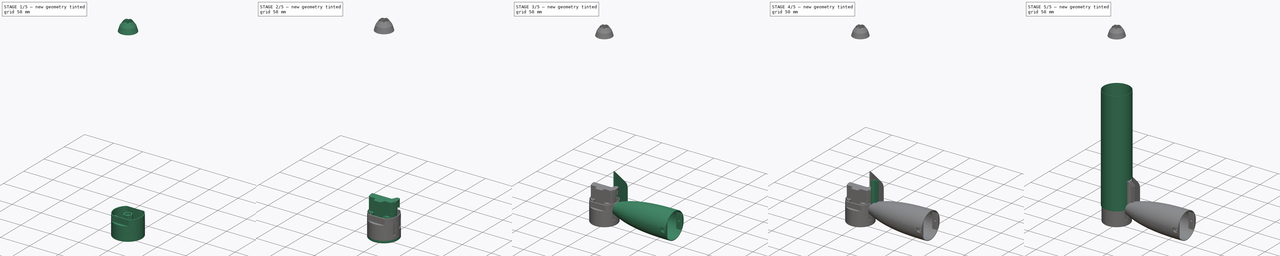
[diagram: build sequence overview — one tinted view per stage of 5, left to right]
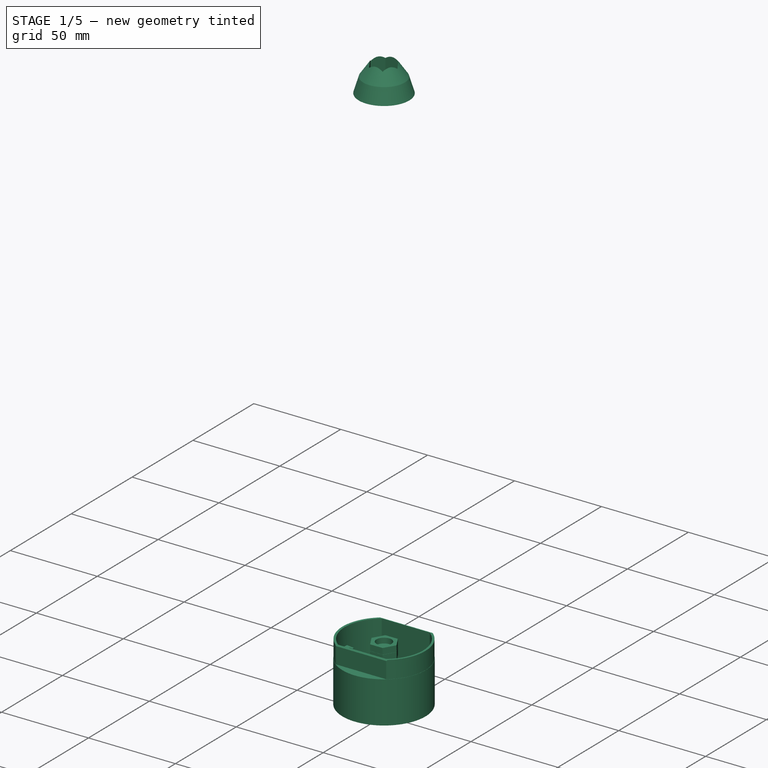
[diagram: stage 1 of 5 — iso view after this stage's code; geometry added in this stage tinted green]
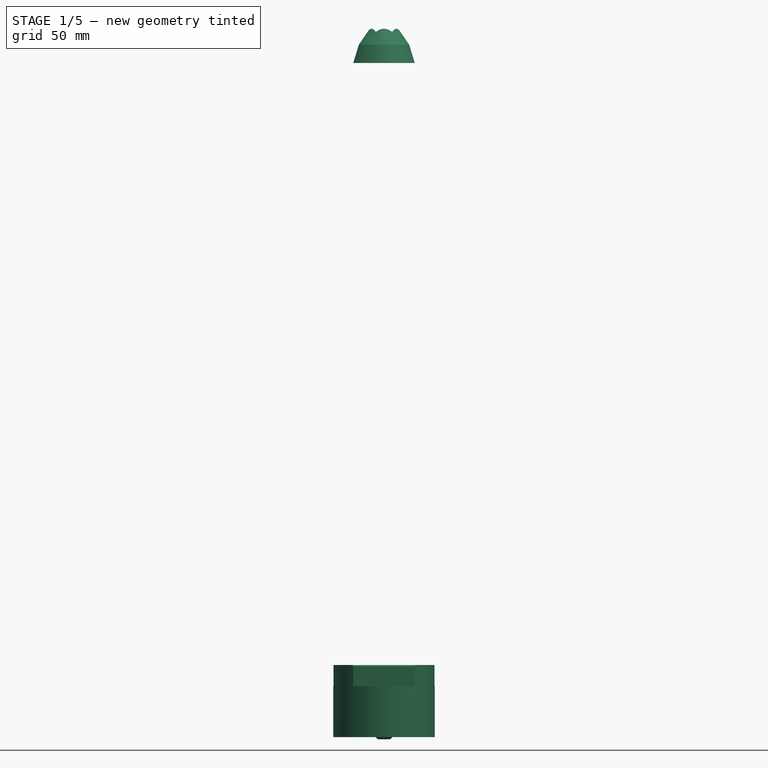
[diagram: stage 1 of 5 — front view after this stage's code; geometry added in this stage tinted green]
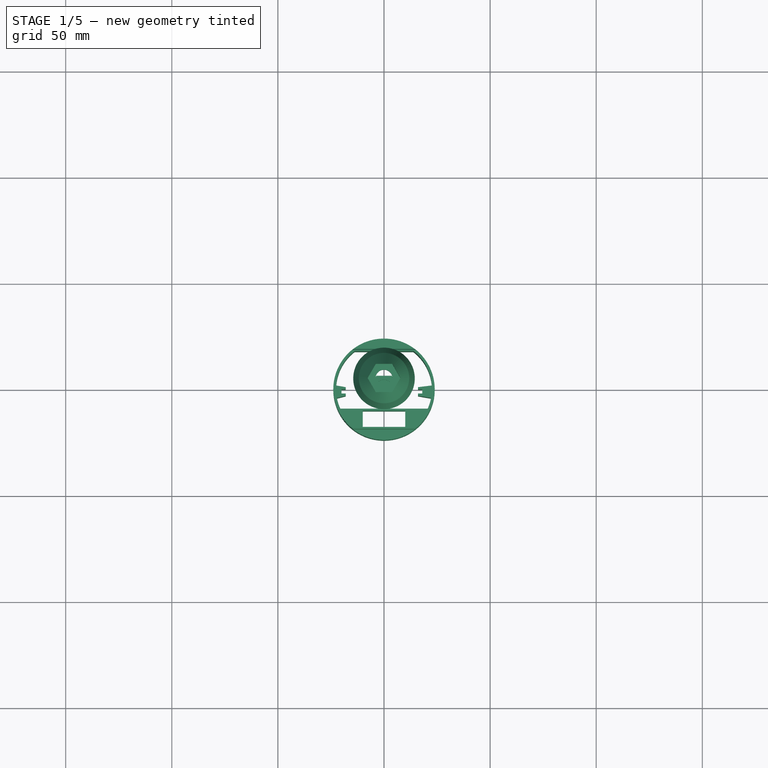
[diagram: stage 1 of 5 — top view after this stage's code; geometry added in this stage tinted green]
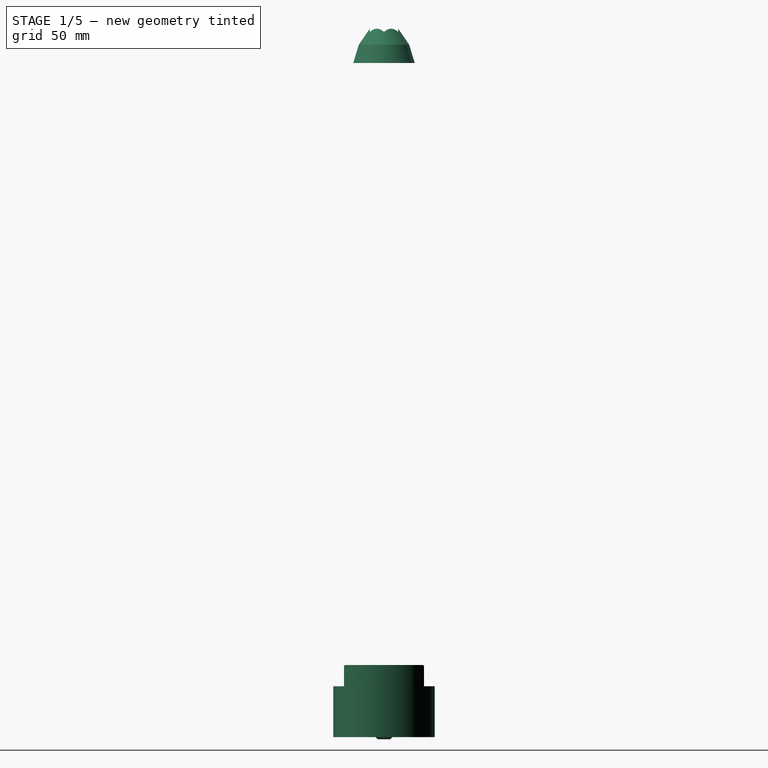
[diagram: stage 1 of 5 — right view after this stage's code; geometry added in this stage tinted green]
FCSTD DOCUMENT  (FreeCAD 0.21R33694 (Git))
Label: LaMule_V1.3
License: All rights reserved
LicenseURL: http://en.wikipedia.org/wiki/All_rights_reserved
objects: Sketcher::SketchObject×42, PartDesign::Pad×20, PartDesign::Pocket×18, PartDesign::Body×16, PartDesign::Fillet×12, PartDesign::Chamfer×7, PartDesign::Revolution×4, App::LinkGroup×2, PartDesign::Thickness×1, PartDesign::Plane×1, TechDraw::DrawSVGTemplate×1, TechDraw::DrawViewPart×1, TechDraw::DrawPage×1
note: 183 computed .brp shape members not serialized (recipe doc carries the construction recipe); baked Part::Feature solids carry a one-line shape summary decoded from their .brp

FEATURE [PartDesign::Body] Body015  label="coiffe_V002"
  Group = -> [Sketch027,Revolution002,Thickness001,Sketch028,Pad017,Chamfer007,Sketch033,Revolution003,Sketch035,Pocket009,Sketch036,Pocket010,Sketch037,Pocket011,Sketch038,Pocket012]
  Origin = -> Origin015
  Placement = pos=(-7.4e-14,0,335) rot=(0,1,0;1.5708rad)
  Tip = -> Pocket012
FEATURE [Sketcher::SketchObject] Sketch039  label="profil haut"
  FullyConstrained = true
  MapMode = 5
  Support = -> [XY_Plane017]
  sketch-geometry (8):
    g0: ArcOfCircle CenterX=0 CenterY=-2.3e-15 CenterZ=0 NormalX=0 NormalY=0 NormalZ=1 AngleXU=0 Radius=23.8 StartAngle=2.2259 EndAngle=4.05728
    g1: ArcOfCircle CenterX=0 CenterY=-2.3e-15 CenterZ=0 NormalX=0 NormalY=0 NormalZ=1 AngleXU=0 Radius=23.8 StartAngle=5.3675 EndAngle=7.19888
    g2: LineSegment StartX=-14.5 StartY=-18.873 StartZ=0 EndX=14.5 EndY=-18.873 EndZ=0
    g3: LineSegment StartX=-14.5 StartY=18.873 StartZ=0 EndX=14.5 EndY=18.873 EndZ=0
    g4: ArcOfCircle CenterX=0 CenterY=-2.3e-15 CenterZ=0 NormalX=0 NormalY=0 NormalZ=1 AngleXU=0 Radius=22.6 StartAngle=2.22941 EndAngle=4.05377
    g5: ArcOfCircle CenterX=0 CenterY=-2.3e-15 CenterZ=0 NormalX=0 NormalY=0 NormalZ=1 AngleXU=0 Radius=22.6 StartAngle=5.371 EndAngle=7.19537
    g6: LineSegment StartX=-13.8317 StartY=17.873 StartZ=0 EndX=13.8317 EndY=17.873 EndZ=0
    g7: LineSegment StartX=13.8317 StartY=-17.873 StartZ=0 EndX=-13.8317 EndY=-17.873 EndZ=0
  constraints (22):
    c: Coincident(g0,g-1)
    c: Coincident(g0,g1)
    c: Coincident(g0,g2)
    c: Coincident(g1,g2)
    c: Coincident(g1,g3)
    c: Coincident(g0,g3)
    c: Symmetric(g1,g0,g-2)
    c: Symmetric(g0,g1,g-2)
    c: Radius(g1) = 23.8
    c: Symmetric(g0,g0,g-1)
    c: DistanceX(g2,g2) = 29
    c: Coincident(g4,g0)
    c: Coincident(g5,g0)
    c: Coincident(g6,g4)
    c: Coincident(g6,g5)
    c: Coincident(g7,g5)
    c: Coincident(g7,g4)
    c: Symmetric(g5,g5,g-1)
    c: Symmetric(g5,g4,g-2)
    c: Radius(g5) = 22.6
    c: Horizontal(g7)
    c: Distance(g4,g3) = 1
FEATURE [PartDesign::Pad] Pad022  label="extrusion partie haute"
  Direction = (0,0,1)
  Length = 10
  Length2 = 100
  Profile = -> Sketch039
  Type = 0
FEATURE [PartDesign::Chamfer] Chamfer009
  Angle = 45
  Base = -> Pad022 [Edge7,Edge12]
  BaseFeature = -> Pad022
  ChamferType = 0
  FlipDirection = false
  Size = 0.5
  Size2 = 1
  SupportTransform = false
  UseAllEdges = false
FEATURE [Sketcher::SketchObject] Sketch040  label="profil bas"
  FullyConstrained = true
  MapMode = 5
  Placement = pos=(0,0,0) rot=(1,0,0;3.14159rad)
  Support = -> [Chamfer009]
  sketch-geometry (2):
    g0: Circle CenterX=0 CenterY=0 CenterZ=0 NormalX=0 NormalY=0 NormalZ=1 AngleXU=0 Radius=23.9
    g1: Circle CenterX=0 CenterY=0 CenterZ=0 NormalX=0 NormalY=0 NormalZ=1 AngleXU=0 Radius=22.6
  constraints (4):
    c: Coincident(g0,g-1)
    c: Radius(g0) = 23.9
    c: Coincident(g1,g0)
    c: Radius(g1) = 22.6
FEATURE [PartDesign::Pad] Pad023  label="extrusion partie basse"
  BaseFeature = -> Chamfer009
  Direction = (0,0,-1)
  Length = 24
  Length2 = 100
  Profile = -> Sketch040
  ReferenceAxis = -> Sketch040 [N_Axis]
  Type = 0
FEATURE [Sketcher::SketchObject] Sketch041
  ExternalGeometry = -> [Pad023]
  FullyConstrained = true
  MapMode = 5
  Support = -> [Pad023]
  sketch-geometry (26):
    g0: Circle CenterX=0 CenterY=-2.3e-15 CenterZ=0 NormalX=0 NormalY=0 NormalZ=1 AngleXU=0 Radius=23.5
    g1: LineSegment StartX=-22.5286 StartY=1.79551 StartZ=0 EndX=-18 EndY=0.997003 EndZ=0
    g2: LineSegment StartX=-18 StartY=0.997003 StartZ=0 EndX=-18 EndY=-0.00299658 EndZ=0
    g3: LineSegment StartX=-18 StartY=-2.003 StartZ=0 EndX=-18 EndY=-3.003 EndZ=0
    g4: LineSegment StartX=-18 StartY=-3.003 StartZ=0 EndX=-22.2256 EndY=-4.0967 EndZ=0
    g5: LineSegment StartX=-18 StartY=-2.003 StartZ=0 EndX=-20 EndY=-2.003 EndZ=0
    g6: LineSegment StartX=-18 StartY=-0.00299658 StartZ=0 EndX=-20 EndY=-0.00299658 EndZ=0
    g7: LineSegment StartX=-20 StartY=-0.00299658 StartZ=0 EndX=-20 EndY=-2.003 EndZ=0
    g8: GeomPoint X=-22.6 Y=0 Z=0
    g9: LineSegment StartX=18 StartY=-1e-16 StartZ=0 EndX=18 EndY=-2 EndZ=0
    g10: LineSegment StartX=18 StartY=-2 StartZ=0 EndX=16 EndY=-2 EndZ=0
    g11: LineSegment StartX=16 StartY=-2 StartZ=0 EndX=16 EndY=-3 EndZ=0
    g12: LineSegment StartX=16 StartY=-3 StartZ=0 EndX=22.225 EndY=-4.1 EndZ=0
    g13: LineSegment StartX=18 StartY=-1e-16 StartZ=0 EndX=16 EndY=-1e-16 EndZ=0
    g14: LineSegment StartX=16 StartY=-1e-16 StartZ=0 EndX=16 EndY=1 EndZ=0
    g15: LineSegment StartX=16 StartY=1 StartZ=0 EndX=22.5282 EndY=1.8 EndZ=0
    g16: ArcOfCircle CenterX=0 CenterY=-2.3e-15 CenterZ=0 NormalX=0 NormalY=0 NormalZ=1 AngleXU=0 Radius=22.6 StartAngle=3.32387 EndAngle=3.55712
    g17: ArcOfCircle CenterX=0 CenterY=-2.3e-15 CenterZ=0 NormalX=0 NormalY=0 NormalZ=1 AngleXU=0 Radius=22.6 StartAngle=5.86766 EndAngle=6.10076
    g18: LineSegment StartX=-10 StartY=-17.873 StartZ=0 EndX=-10 EndY=-10.123 EndZ=0
    g19: LineSegment StartX=-10 StartY=-17.873 StartZ=0 EndX=10 EndY=-17.873 EndZ=0
    g20: LineSegment StartX=10 StartY=-17.873 StartZ=0 EndX=10 EndY=-10.123 EndZ=0
    g21: ArcOfCircle CenterX=0 CenterY=-2.3e-15 CenterZ=0 NormalX=0 NormalY=0 NormalZ=1 AngleXU=0 Radius=22.6 StartAngle=2.22941 EndAngle=3.06206
    g22: ArcOfCircle CenterX=0 CenterY=-2.3e-15 CenterZ=0 NormalX=0 NormalY=0 NormalZ=1 AngleXU=0 Radius=22.6 StartAngle=0.0797305 EndAngle=0.912181
    g23: LineSegment StartX=13.8317 StartY=17.873 StartZ=0 EndX=-13.8317 EndY=17.873 EndZ=0
    g24: LineSegment StartX=-10 StartY=-10.123 StartZ=0 EndX=10 EndY=-10.123 EndZ=0
    g25: LineSegment StartX=-20.6768 StartY=-9.123 StartZ=0 EndX=20.6768 EndY=-9.123 EndZ=0
  constraints (75):
    c: Coincident(g0,g-3)
    c: Coincident(g1,g2)
    c: Vertical(g2)
    c: Coincident(g3,g4)
    c: Coincident(g3,g5)
    c: Distance(g3,g2) = 2
    c: Horizontal(g5)
    c: Coincident(g6,g2)
    c: Horizontal(g6)
    c: Coincident(g7,g6)
    c: Coincident(g7,g5)
    c: Angle(g1,g2) = 1.74533
    c: Vertical(g7)
    c: PointOnObject(g8,g-1)
    c: PointOnObject(g8,g-7)
    c: DistanceX(g6,g6) = 2
    c: DistanceY(g3,g3) = 1
    c: Coincident(g9,g10)
    c: Coincident(g10,g11)
    c: Coincident(g11,g12)
    c: Coincident(g9,g13)
    c: Coincident(g13,g14)
    c: Coincident(g14,g15)
    c: Vertical(g11)
    c: Vertical(g14)
    c: Horizontal(g13)
    c: Horizontal(g10)
    c: Coincident(g16,g0)
    c: Coincident(g16,g4)
    c: Coincident(g17,g0)
    c: Coincident(g17,g12)
    c: PointOnObject(g18,g-5)
    c: Vertical(g18)
    c: PointOnObject(g19,g18)
    c: PointOnObject(g19,g-5)
    c: Horizontal(g19)
    c: Coincident(g19,g20)
    c: Vertical(g20)
    c: Symmetric(g18,g20,g-2)
    c: Distance(g18,g20) = 20
    c: DistanceY(g20,g20) = 7.75
    c: Diameter(g0) = 47
    c: Coincident(g21,g0)
    c: Coincident(g21,g1)
    c: Coincident(g21,g-7)
    c: Coincident(g22,g0)
    c: Coincident(g22,g15)
    c: Coincident(g23,g22)
    c: Coincident(g23,g21)
    c: Horizontal(g23)
    c: Distance(g5,g9) = 38
    c: Coincident(g24,g18)
    c: Coincident(g24,g20)
    c: Coincident(g25,g16)
    c: Coincident(g25,g17)
    c: Horizontal(g25)
    c: Distance(g20,g25) = 1
    c: Distance(g3,g1) = 4
    c: Distance(g3,g25) = 6.12
    c: Distance(g4,g1) = 5.9
    c: DistanceY(g2,g2) = 1
    c: Equal(g5,g6)
    c: Radius(g16) = 22.6
    c: DistanceY(g9,g9) = 2
    c: Vertical(g9)
    c: DistanceY(g11,g11) = 1
    c: DistanceX(g10,g10) = 2
    c: DistanceX(g-2,g5) = -20
    c: DistanceY(g-1,g11) = -3
    c: DistanceY(g14,g14) = 1
    c: DistanceX(g13,g13) = 2
    c: Radius(g22) = 22.6
    c: Radius(g17) = 22.6
    c: DistanceY(g-1,g15) = 1.8
    c: DistanceY(g-1,g12) = -4.1
FEATURE [PartDesign::Pad] Pad024  label="extrusion supports composants"
  BaseFeature = -> Pad023
  Direction = (0,0,1)
  Length = 24
  Length2 = 10
  Profile = -> Sketch041
  ReferenceAxis = -> Sketch041 [N_Axis]
  Reversed = true
  Type = 0
FEATURE [PartDesign::Body] Body017  label="couvercle_coiffe_V003"
  Group = -> [Sketch039,Pad022,Chamfer009,Sketch040,Pad023,Sketch041,Pad024,Sketch042,Pad025,Chamfer010,Sketch043,Pocket013,Sketch044,Pocket014,Sketch045,Pocket015,Sketch052,Pocket019,Sketch055,Pocket021]
  Origin = -> Origin017
  Placement = pos=(0,0,200.3) rot=(0,0,1;0rad)
  Tip = -> Pocket021
FEATURE [Sketcher::SketchObject] Sketch056
  FullyConstrained = true
  MapMode = 5
  Placement = pos=(0,0,0) rot=(1,0,0;1.5708rad)
  Support = -> [XZ_Plane019]
  sketch-geometry (4):
    g0: LineSegment StartX=0 StartY=319.649 StartZ=0 EndX=11.88 EndY=302.333 EndZ=0
    g1: LineSegment StartX=11.88 StartY=302.333 StartZ=0 EndX=14.5 EndY=293.723 EndZ=0
    g2: LineSegment StartX=14.5 StartY=293.723 StartZ=0 EndX=0 EndY=293.723 EndZ=0
    g3: LineSegment StartX=0 StartY=293.723 StartZ=0 EndX=0 EndY=319.649 EndZ=0
  constraints (12):
    c: Coincident(g0,g1)
    c: Coincident(g1,g2)
    c: Horizontal(g2)
    c: Coincident(g2,g3)
    c: Coincident(g3,g0)
    c: Vertical(g3)
    c: PointOnObject(g0,g-2)
    c: Distance(g0) = 21
    c: DistanceY(g0) = 319.649
    c: DistanceX(g2,g2) = 14.5
    c: Distance(g1) = 9
    c: Distance(g0,g3) = 11.88
FEATURE [PartDesign::Revolution] Revolution004
  Angle = 360
  Axis = (0,2e-16,1)
  Base = (0,0,0)
  Placement = pos=(0,0,0) rot=(1,0,0;1.5708rad)
  Profile = -> Sketch056
  ReferenceAxis = -> Sketch056 [V_Axis]
  Reversed = true
FEATURE [Sketcher::SketchObject] Sketch057
  FullyConstrained = true
  MapMode = 5
  Placement = pos=(0,0,293.723) rot=(1,0,0;3.14159rad)
  Support = -> [Revolution004]
  sketch-geometry (1):
    g0: Circle CenterX=0 CenterY=0 CenterZ=0 NormalX=0 NormalY=0 NormalZ=1 AngleXU=0 Radius=4
  constraints (2):
    c: Diameter(g0) = 8
    c: Coincident(g0,g-1)
FEATURE [PartDesign::Pocket] Pocket022
  BaseFeature = -> Revolution004
  Direction = (0,2e-16,1)
  Length = 43
  Length2 = 5
  Placement = pos=(0,0,0) rot=(1,0,0;1.5708rad)
  Profile = -> Sketch057
  ReferenceAxis = -> Sketch057 [N_Axis]
  Type = 1
FEATURE [PartDesign::Plane] DatumPlane
  Length = 60
  MapMode = 11
  Placement = pos=(0,0,313.819) rot=(0.707107,-0.707107,0;3.14159rad)
  ResizeMode = 0
  Support = -> [Pocket022]
  Width = 60
FEATURE [Sketcher::SketchObject] Sketch058
  FullyConstrained = true
  MapMode = 5
  Placement = pos=(0,0,313.819) rot=(0.707107,-0.707107,0;3.14159rad)
  Support = -> [DatumPlane]
  sketch-geometry (7):
    g0: LineSegment StartX=6.7117 StartY=-3.875 StartZ=0 EndX=6.7117 EndY=3.875 EndZ=0
    g1: LineSegment StartX=6.7117 StartY=3.875 StartZ=0 EndX=9e-16 EndY=7.75 EndZ=0
    g2: LineSegment StartX=9e-16 StartY=7.75 StartZ=0 EndX=-6.7117 EndY=3.875 EndZ=0
    g3: LineSegment StartX=-6.7117 StartY=3.875 StartZ=0 EndX=-6.7117 EndY=-3.875 EndZ=0
    g4: LineSegment StartX=-6.7117 StartY=-3.875 StartZ=0 EndX=0 EndY=-7.75 EndZ=0
    g5: LineSegment StartX=0 StartY=-7.75 StartZ=0 EndX=6.7117 EndY=-3.875 EndZ=0
    g6: Circle CenterX=0 CenterY=0 CenterZ=0 NormalX=0 NormalY=0 NormalZ=1 AngleXU=0 Radius=7.75
  constraints (16):
    c: Coincident(g0,g1)
    c: Coincident(g1,g2)
    c: Coincident(g2,g3)
    c: Coincident(g3,g4)
    c: Coincident(g4,g5)
    c: Coincident(g5,g0)
    c: Equal(g0, g1-g5) x5
    c: PointOnObject(g0,g6)
    c: PointOnObject(g1,g6)
    c: PointOnObject(g2,g6)
    c: PointOnObject(g3,g6)
    c: PointOnObject(g4,g6)
    c: PointOnObject(g5,g6)
    c: Coincident(g6,g-1)
    c: Diameter(g6) = 15.5
    c: PointOnObject(g4,g-2)
FEATURE [PartDesign::Pocket] Pocket023
  BaseFeature = -> Pocket022
  Direction = (0,2e-16,1)
  Length = 14
  Length2 = 5
  Placement = pos=(0,0,0) rot=(1,0,0;1.5708rad)
  Profile = -> Sketch058
  ReferenceAxis = -> Sketch058 [N_Axis]
  Reversed = true
  Type = 0
FEATURE [PartDesign::Body] Body019  label="Support lest"
  Group = -> [Sketch056,Revolution004,Sketch057,Pocket022,DatumPlane,Sketch058,Pocket023]
  Origin = -> Origin019
  Tip = -> Pocket023
FEATURE [Sketcher::SketchObject] Sketch059
  FullyConstrained = true
  MapMode = 5
  Support = -> [XY_Plane020]
  sketch-geometry (7):
    g0: LineSegment StartX=7.25 StartY=0 StartZ=0 EndX=3.625 EndY=6.27868 EndZ=0
    g1: LineSegment StartX=3.625 StartY=6.27868 StartZ=0 EndX=-3.625 EndY=6.27868 EndZ=0
    g2: LineSegment StartX=-3.625 StartY=6.27868 StartZ=0 EndX=-7.25 EndY=-1.323e-13 EndZ=0
    g3: LineSegment StartX=-7.25 StartY=-1.323e-13 StartZ=0 EndX=-3.625 EndY=-6.27868 EndZ=0
    g4: LineSegment StartX=-3.625 StartY=-6.27868 StartZ=0 EndX=3.625 EndY=-6.27868 EndZ=0
    g5: LineSegment StartX=3.625 StartY=-6.27868 StartZ=0 EndX=7.25 EndY=0 EndZ=0
    g6: Circle CenterX=0 CenterY=0 CenterZ=0 NormalX=0 NormalY=0 NormalZ=1 AngleXU=0 Radius=7.25
  constraints (16):
    c: Coincident(g0,g1)
    c: Coincident(g1,g2)
    c: Coincident(g2,g3)
    c: Coincident(g3,g4)
    c: Coincident(g4,g5)
    c: Coincident(g5,g0)
    c: Equal(g0, g1-g5) x5
    c: PointOnObject(g0,g6)
    c: PointOnObject(g1,g6)
    c: PointOnObject(g2,g6)
    c: PointOnObject(g3,g6)
    c: PointOnObject(g4,g6)
    c: PointOnObject(g5,g6)
    c: Coincident(g6,g-1)
    c: Diameter(g6) = 14.5
    c: PointOnObject(g0,g-1)
FEATURE [PartDesign::Pad] Pad029
  Direction = (0,0,1)
  Length = 5.5
  Length2 = 10
  Profile = -> Sketch059
  ReferenceAxis = -> Sketch059 [N_Axis]
  Type = 0
FEATURE [Sketcher::SketchObject] Sketch060
  FullyConstrained = true
  MapMode = 5
  Placement = pos=(0,0,0) rot=(1,0,0;3.14159rad)
  Support = -> [Pad029]
  sketch-geometry (1):
    g0: Circle CenterX=0 CenterY=0 CenterZ=0 NormalX=0 NormalY=0 NormalZ=1 AngleXU=0 Radius=3.9
  constraints (2):
    c: Coincident(g0,g-1)
    c: Diameter(g0) = 7.8
FEATURE [PartDesign::Pad] Pad030
  BaseFeature = -> Pad029
  Direction = (0,0,-1)
  Length = 25
  Length2 = 10
  Profile = -> Sketch060
  ReferenceAxis = -> Sketch060 [N_Axis]
  Type = 0
FEATURE [PartDesign::Chamfer] Chamfer011
  Angle = 45
  Base = -> Pad030 [Edge21]
  BaseFeature = -> Pad030
  ChamferType = 0
  FlipDirection = false
  Size = 1
  Size2 = 1
  SupportTransform = false
  UseAllEdges = false
FEATURE [PartDesign::Chamfer] Chamfer012
  Angle = 45
  Base = -> Chamfer011 [Face11]
  BaseFeature = -> Chamfer011
  ChamferType = 0
  FlipDirection = false
  Size = 0.5
  Size2 = 1
  SupportTransform = false
  UseAllEdges = false
FEATURE [PartDesign::Body] Body020  label="Boulon support lest"
  Group = -> [Sketch059,Pad029,Sketch060,Pad030,Chamfer011,Chamfer012]
  Origin = -> Origin020
  Placement = pos=(0,-2e-15,284) rot=(1,0,0;3.14159rad)
  Tip = -> Chamfer012
FEATURE [Sketcher::SketchObject] Sketch061
  FullyConstrained = true
  MapMode = 5
  Support = -> [XY_Plane021]
  sketch-geometry (8):
    g0: LineSegment StartX=-3.6 StartY=-6.23538 StartZ=0 EndX=3.6 EndY=-6.23538 EndZ=0
    g1: LineSegment StartX=3.6 StartY=-6.23538 StartZ=0 EndX=7.2 EndY=9e-16 EndZ=0
    g2: LineSegment StartX=7.2 StartY=9e-16 StartZ=0 EndX=3.6 EndY=6.23538 EndZ=0
    g3: LineSegment StartX=3.6 StartY=6.23538 StartZ=0 EndX=-3.6 EndY=6.23538 EndZ=0
    g4: LineSegment StartX=-3.6 StartY=6.23538 StartZ=0 EndX=-7.2 EndY=0 EndZ=0
    g5: LineSegment StartX=-7.2 StartY=0 StartZ=0 EndX=-3.6 EndY=-6.23538 EndZ=0
    g6: Circle CenterX=0 CenterY=0 CenterZ=0 NormalX=0 NormalY=0 NormalZ=1 AngleXU=0 Radius=7.2
    g7: Circle CenterX=0 CenterY=0 CenterZ=0 NormalX=0 NormalY=0 NormalZ=1 AngleXU=0 Radius=4.35
  constraints (18):
    c: Coincident(g0,g1)
    c: Coincident(g1,g2)
    c: Coincident(g2,g3)
    c: Coincident(g3,g4)
    c: Coincident(g4,g5)
    c: Coincident(g5,g0)
    c: Equal(g0, g1-g5) x5
    c: PointOnObject(g0,g6)
    c: PointOnObject(g1,g6)
    c: PointOnObject(g2,g6)
    c: PointOnObject(g3,g6)
    c: PointOnObject(g4,g6)
    c: PointOnObject(g5,g6)
    c: Coincident(g6,g-1)
    c: Diameter(g6) = 14.4
    c: PointOnObject(g4,g-1)
    c: Coincident(g7,g6)
    c: Diameter(g7) = 8.7
FEATURE [PartDesign::Pad] Pad031
  Direction = (0,0,1)
  Length = 8.5
  Length2 = 10
  Profile = -> Sketch061
  ReferenceAxis = -> Sketch061 [N_Axis]
  Type = 0
FEATURE [PartDesign::Body] Body021  label="Ecrou support lest"
  Group = -> [Sketch061,Pad031]
  Origin = -> Origin021
  Placement = pos=(0,0,300) rot=(0,0,1;0rad)
  Tip = -> Pad031
FEATURE [TechDraw::DrawSVGTemplate] Template
  EditableTexts = Approved1=Approved 1; Approved2=Approved 2; CheckedBy=Checked By; Code=Code; CompanyAddress=1234 Main St; CompanyName=Company Name; DrawingNumber=Drawing Number; DrawingTitle1=Drawing Title 1; DrawingTitle2=Drawing Title 2; DrawingTitle3=Drawing Title 3; DrawnBy=Drawn By; Revision=Rev; Scale=Scale; Sheet=Sheet n of m; Weight=Weight
  Height = 215.9
  Orientation = 1
  Template = <path>
  Width = 279.4
FEATURE [TechDraw::DrawViewPart] View
  CoarseView = false
  Direction = (0,-1,0)
  Focus = 100
  HardHidden = false
  IsoCount = 0
  IsoHidden = false
  IsoVisible = false
  LockPosition = false
  Perspective = false
  Rotation = 315
  Scale = 0.5
  ScaleType = 0
  ScrubCount = 0
  SeamHidden = false
  SeamVisible = false
  SmoothHidden = false
  SmoothVisible = true
  Source = -> [Body021,Body,Body001,Body015,Body017,Body018,Body019,Body020]
  X = 95.0793
  XDirection = (1,0,0)
  XSource = -> [LinkGroup,LinkGroup001]
  Y = 127.653
  expr: Rotation = 315 °
FEATURE [TechDraw::DrawPage] Page
  KeepUpdated = true
  NextBalloonIndex = 1
  ProjectionType = 0
  Scale = 0.5
  Template = -> Template
  Views = -> [View]
note: 1 file-system path scrubbed to <path> (originals preserved in the JSON sidecar)
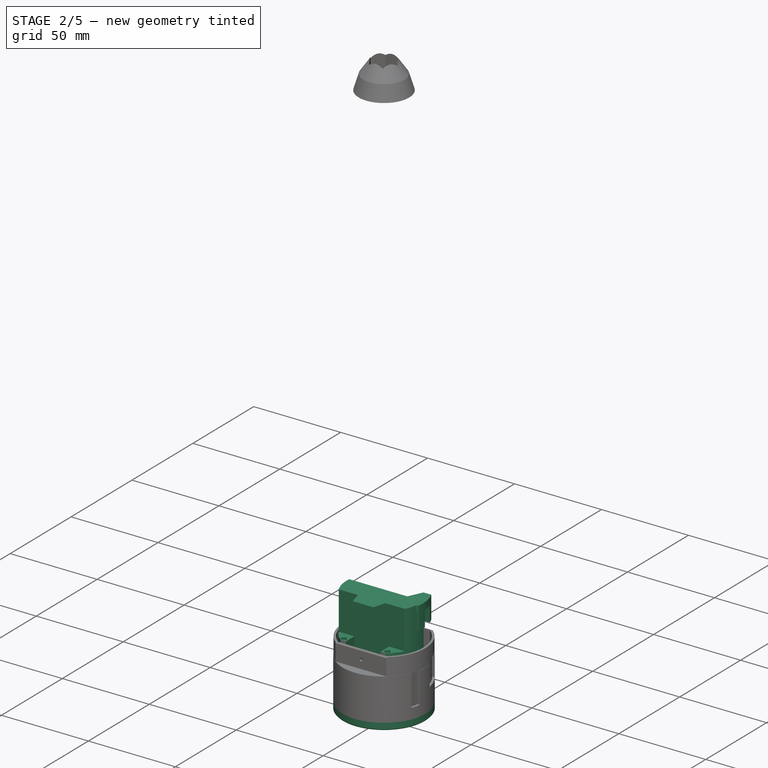
[diagram: stage 2 of 5 — iso view after this stage's code; geometry added in this stage tinted green]
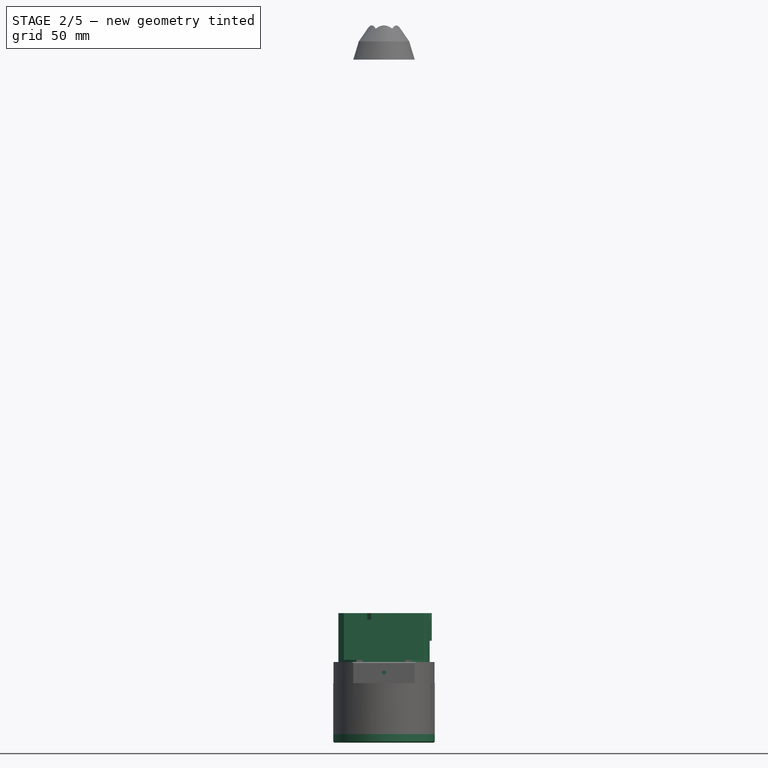
[diagram: stage 2 of 5 — front view after this stage's code; geometry added in this stage tinted green]
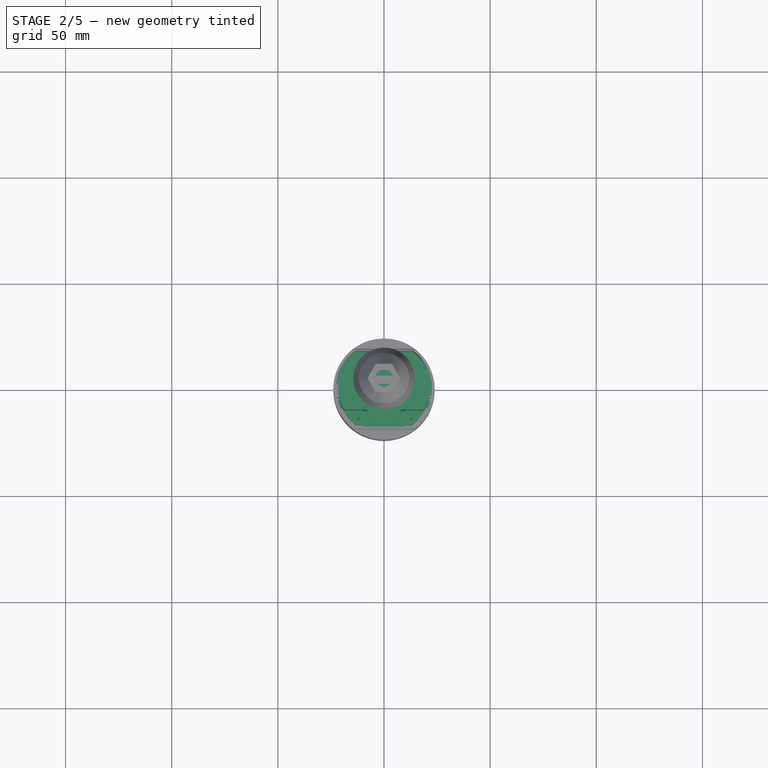
[diagram: stage 2 of 5 — top view after this stage's code; geometry added in this stage tinted green]
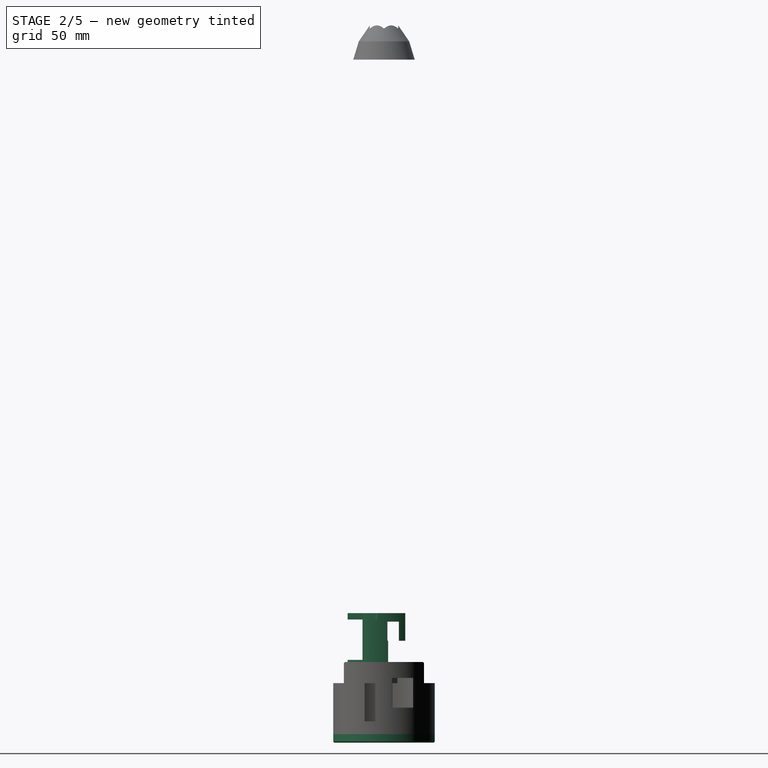
[diagram: stage 2 of 5 — right view after this stage's code; geometry added in this stage tinted green]
FEATURE [Sketcher::SketchObject] Sketch042
  ExternalGeometry = -> [Pad024]
  FullyConstrained = true
  MapMode = 5
  Placement = pos=(0,0,-24) rot=(1,0,0;3.14159rad)
  Support = -> [Pad024]
  sketch-geometry (2):
    g0: Circle CenterX=0 CenterY=0 CenterZ=0 NormalX=0 NormalY=0 NormalZ=1 AngleXU=0 Radius=23.9
    g1: GeomPoint X=0 Y=23.9 Z=0
  constraints (4):
    c: PointOnObject(g1,g-3)
    c: PointOnObject(g1,g0)
    c: Coincident(g0,g-3)
    c: PointOnObject(g1,g-2)
FEATURE [PartDesign::Pad] Pad025
  BaseFeature = -> Pad024
  Direction = (0,0,-1)
  Length = 4
  Length2 = 10
  Profile = -> Sketch042
  ReferenceAxis = -> Sketch042 [N_Axis]
  Type = 0
FEATURE [PartDesign::Chamfer] Chamfer010
  Angle = 45
  Base = -> Pad025 [Edge56]
  BaseFeature = -> Pad025
  ChamferType = 0
  FlipDirection = false
  Size = 0.5
  Size2 = 1
  SupportTransform = false
  UseAllEdges = false
FEATURE [Sketcher::SketchObject] Sketch043
  FullyConstrained = true
  MapMode = 5
  Placement = pos=(0,0,-28) rot=(1,0,0;3.14159rad)
  Support = -> [Chamfer010]
  sketch-geometry (4):
    g0: Circle CenterX=0 CenterY=0 CenterZ=0 NormalX=0 NormalY=0 NormalZ=1 AngleXU=0 Radius=19.75
    g1: Circle CenterX=-15.75 CenterY=11.9164 CenterZ=0 NormalX=0 NormalY=0 NormalZ=1 AngleXU=0 Radius=1.5
    g2: Circle CenterX=15.75 CenterY=11.9164 CenterZ=0 NormalX=0 NormalY=0 NormalZ=1 AngleXU=0 Radius=1.5
    g3: Circle CenterX=0 CenterY=-19.75 CenterZ=0 NormalX=0 NormalY=0 NormalZ=1 AngleXU=0 Radius=1.5
  constraints (10):
    c: Coincident(g0,g-1)
    c: PointOnObject(g1,g0)
    c: PointOnObject(g3,g0)
    c: Equal(g3,g2)
    c: Equal(g3,g1)
    c: Diameter(g3) = 3
    c: Symmetric(g1,g2,g-2)
    c: PointOnObject(g3,g-2)
    c: Diameter(g0) = 39.5
    c: Distance(g1,g2) = 31.5
FEATURE [PartDesign::Pocket] Pocket013  label="trous attache corde parachute"
  BaseFeature = -> Chamfer010
  Direction = (0,0,1)
  Length = 15
  Length2 = 5
  Profile = -> Sketch043
  ReferenceAxis = -> Sketch043 [N_Axis]
  Type = 0
FEATURE [Sketcher::SketchObject] Sketch044
  FullyConstrained = true
  MapMode = 5
  Placement = pos=(4.6e-15,-18.873,0) rot=(1,0,0;1.5708rad)
  Support = -> [Pocket013]
  sketch-geometry (1):
    g0: Circle CenterX=0 CenterY=5 CenterZ=0 NormalX=0 NormalY=0 NormalZ=1 AngleXU=0 Radius=1
  constraints (3):
    c: PointOnObject(g0,g-2)
    c: Diameter(g0) = 2
    c: DistanceY(g-1,g0) = 5
FEATURE [PartDesign::Pocket] Pocket014  label="trous fixation coiffe"
  BaseFeature = -> Pocket013
  Direction = (-2e-16,1,-2e-16)
  Length = 100
  Length2 = 5
  Profile = -> Sketch044
  ReferenceAxis = -> Sketch044 [N_Axis]
  Type = 0
FEATURE [Sketcher::SketchObject] Sketch045
  FullyConstrained = true
  MapMode = 5
  Support = -> [Pocket014]
  sketch-geometry (2):
    g0: Circle CenterX=12.5 CenterY=-15 CenterZ=0 NormalX=0 NormalY=0 NormalZ=1 AngleXU=0 Radius=1.25
    g1: Circle CenterX=-12.5 CenterY=-15 CenterZ=0 NormalX=0 NormalY=0 NormalZ=1 AngleXU=0 Radius=1.25
  constraints (5):
    c: Symmetric(g1,g0,g-2)
    c: Equal(g1,g0)
    c: Diameter(g1) = 2.5
    c: Distance(g1,g0) = 25
    c: DistanceY(g-1,g1) = -15
FEATURE [PartDesign::Pocket] Pocket015  label="trous montage FixationLaMuLog"
  BaseFeature = -> Pocket014
  Direction = (0,0,-1)
  Length = 15
  Length2 = 5
  Profile = -> Sketch045
  ReferenceAxis = -> Sketch045 [N_Axis]
  Type = 0
FEATURE [Sketcher::SketchObject] Sketch046
  FullyConstrained = true
  MapMode = 5
  Support = -> [XY_Plane018]
  sketch-geometry (27):
    g0: Circle CenterX=0 CenterY=0 CenterZ=0 NormalX=0 NormalY=0 NormalZ=1 AngleXU=0 Radius=21.5
    g1: LineSegment StartX=-21.4399 StartY=1.60655 StartZ=0 EndX=-18 EndY=1 EndZ=0
    g2: LineSegment StartX=-18 StartY=1 StartZ=0 EndX=-18 EndY=4e-16 EndZ=0
    g3: LineSegment StartX=-18 StartY=4e-16 StartZ=0 EndX=-20 EndY=4e-16 EndZ=0
    g4: LineSegment StartX=-20 StartY=4e-16 StartZ=0 EndX=-20 EndY=-2 EndZ=0
    g5: LineSegment StartX=-20 StartY=-2 StartZ=0 EndX=-18 EndY=-2 EndZ=0
    g6: LineSegment StartX=-18 StartY=-2 StartZ=0 EndX=-18 EndY=-3 EndZ=0
    g7: LineSegment StartX=13 StartY=-17.1245 StartZ=0 EndX=10 EndY=-17.1245 EndZ=0
    g8: LineSegment StartX=10 StartY=-17.1245 StartZ=0 EndX=10 EndY=-10.1245 EndZ=0
    g9: LineSegment StartX=10 StartY=-10.1245 StartZ=0 EndX=-10 EndY=-10.1245 EndZ=0
    g10: LineSegment StartX=-10 StartY=-10.1245 StartZ=0 EndX=-10 EndY=-17.1245 EndZ=0
    g11: LineSegment StartX=-10 StartY=-17.1245 StartZ=0 EndX=-13 EndY=-17.1245 EndZ=0
    g12: ArcOfCircle CenterX=0 CenterY=0 CenterZ=0 NormalX=0 NormalY=0 NormalZ=1 AngleXU=0 Radius=21.5 StartAngle=5.36172 EndAngle=6.3742
    g13: LineSegment StartX=19.1724 StartY=-3.55938 StartZ=0 EndX=16 EndY=-3 EndZ=0
    g14: LineSegment StartX=16 StartY=-3 StartZ=0 EndX=16 EndY=-2 EndZ=0
    g15: LineSegment StartX=16 StartY=-2 StartZ=0 EndX=18 EndY=-2 EndZ=0
    g16: LineSegment StartX=18 StartY=-2 StartZ=0 EndX=18 EndY=0 EndZ=0
    g17: LineSegment StartX=18 StartY=0 StartZ=0 EndX=16 EndY=0 EndZ=0
    g18: LineSegment StartX=16 StartY=0 StartZ=0 EndX=16 EndY=1 EndZ=0
    g19: LineSegment StartX=16 StartY=1 StartZ=0 EndX=21.411 EndY=1.95411 EndZ=0
    g20: ArcOfCircle CenterX=0 CenterY=0 CenterZ=0 NormalX=0 NormalY=0 NormalZ=1 AngleXU=0 Radius=19.5 StartAngle=5.79709 EndAngle=6.09962
    g21: LineSegment StartX=17.2412 StartY=-9.11 StartZ=0 EndX=-17.2412 EndY=-9.11 EndZ=0
    g22: ArcOfCircle CenterX=0 CenterY=0 CenterZ=0 NormalX=0 NormalY=0 NormalZ=1 AngleXU=0 Radius=19.5 StartAngle=3.31179 EndAngle=3.62769
    g23: LineSegment StartX=-19.2183 StartY=-3.30284 StartZ=0 EndX=-18 EndY=-3 EndZ=0
    g24: Circle CenterX=-12.5 CenterY=-15 CenterZ=0 NormalX=0 NormalY=0 NormalZ=1 AngleXU=0 Radius=1.5
    g25: Circle CenterX=12.5 CenterY=-15 CenterZ=0 NormalX=0 NormalY=0 NormalZ=1 AngleXU=0 Radius=1.5
    g26: ArcOfCircle CenterX=0 CenterY=0 CenterZ=0 NormalX=0 NormalY=0 NormalZ=1 AngleXU=0 Radius=21.5 StartAngle=3.0668 EndAngle=4.06306
  constraints (76):
    c: Diameter(g0) = 43
    c: PointOnObject(g11,g0)
    c: Coincident(g1,g2)
    c: Coincident(g2,g3)
    c: Horizontal(g3)
    c: Coincident(g3,g4)
    c: Coincident(g4,g5)
    c: Horizontal(g5)
    c: Coincident(g5,g6)
    c: Vertical(g6)
    c: Vertical(g4)
    c: DistanceY(g4,g4) = 2
    c: DistanceX(g5,g5) = 2
    c: DistanceY(g6,g6) = 1
    c: DistanceX(g-2,g2) = -18
    c: Angle(g1,g2) = 1.74533
    c: Coincident(g7,g8)
    c: Vertical(g8)
    c: Coincident(g8,g9)
    c: Coincident(g9,g10)
    c: Coincident(g10,g11)
    c: Symmetric(g11,g7,g-2)
    c: Horizontal(g11)
    c: Horizontal(g7)
    c: Vertical(g10)
    c: DistanceX(g11,g11) = 3
    c: DistanceY(g10,g10) = 7
    c: DistanceX(g9,g9) = 20
    c: Symmetric(g9,g8,g-2)
    c: Coincident(g12,g7)
    c: Coincident(g13,g14)
    c: Vertical(g14)
    c: Coincident(g14,g15)
    c: Coincident(g15,g16)
    c: Coincident(g16,g17)
    c: Horizontal(g17)
    c: Coincident(g17,g18)
    c: Coincident(g18,g19)
    c: Coincident(g19,g12)
    c: Vertical(g18)
    c: Angle(g18,g19) = 1.74533
    c: Horizontal(g15)
    c: Angle(g13,g14) = 1.74533
    c: Coincident(g20,g13)
    c: Coincident(g21,g20)
    c: Radius(g20) = 19.5
    c: DistanceY(g-1,g20) = -9.11
    c: Coincident(g22,g21)
    c: Symmetric(g21,g20,g-2)
    c: Coincident(g23,g22)
    c: Coincident(g23,g6)
    c: Equal(g25,g24)
    c: Diameter(g25) = 3
    c: Symmetric(g24,g25,g-2)
    c: DistanceX(g-2,g24) = -12.5
    c: DistanceY(g-1,g24) = -15
    c: Coincident(g26,g12)
    c: Coincident(g26,g1)
    c: Coincident(g26,g11)
    c: DistanceY(g2,g2) = 1
    c: Vertical(g2)
    c: DistanceX(g3,g3) = 2
    c: Coincident(g12,g20)
    c: Coincident(g0,g12)
    c: Coincident(g22,g12)
    c: Distance(g6,g21) = 6.11
    c: Coincident(g12,g-1)
    c: Angle(g6,g23) = 1.81444
    c: Vertical(g16)
    c: DistanceX(g17,g17) = 2
    c: DistanceX(g15,g15) = 2
    c: DistanceY(g14,g14) = 1
    c: DistanceY(g18,g18) = 1
    c: DistanceY(g16,g16) = 2
    c: DistanceY(g-1,g14) = -2
    c: Distance(g15,g4) = 38
FEATURE [PartDesign::Pad] Pad026
  Direction = (0,0,1)
  Length = 30
  Length2 = 10
  Profile = -> Sketch046
  ReferenceAxis = -> Sketch046 [N_Axis]
  Type = 0
FEATURE [Sketcher::SketchObject] Sketch047
  ExternalGeometry = -> [Pad026]
  FullyConstrained = true
  MapMode = 5
  Placement = pos=(0,0,30) rot=(0,0,1;0rad)
  Support = -> [Pad026]
  sketch-geometry (4):
    g0: ArcOfCircle CenterX=0 CenterY=0 CenterZ=0 NormalX=0 NormalY=0 NormalZ=1 AngleXU=0 Radius=21.5 StartAngle=3.63191 EndAngle=4.06306
    g1: ArcOfCircle CenterX=0 CenterY=0 CenterZ=0 NormalX=0 NormalY=0 NormalZ=1 AngleXU=0 Radius=21.5 StartAngle=5.36172 EndAngle=5.79286
    g2: LineSegment StartX=-18.9669 StartY=-10.1245 StartZ=0 EndX=18.9669 EndY=-10.1245 EndZ=0
    g3: LineSegment StartX=-13 StartY=-17.1245 StartZ=0 EndX=13 EndY=-17.1245 EndZ=0
  constraints (10):
    c: Coincident(g0,g-4)
    c: Coincident(g0,g-3)
    c: Coincident(g1,g0)
    c: Coincident(g1,g-4)
    c: Coincident(g2,g0)
    c: Coincident(g2,g1)
    c: Horizontal(g2)
    c: PointOnObject(g-5,g2)
    c: Coincident(g3,g0)
    c: Coincident(g3,g1)
FEATURE [PartDesign::Pocket] Pocket016
  BaseFeature = -> Pad026
  Direction = (0,0,-1)
  Length = 19
  Length2 = 5
  Profile = -> Sketch047
  ReferenceAxis = -> Sketch047 [N_Axis]
  Type = 0
FEATURE [Sketcher::SketchObject] Sketch048
  ExternalGeometry = -> [Pocket016]
  FullyConstrained = true
  MapMode = 5
  Placement = pos=(0,0,30) rot=(0,0,1;0rad)
  Support = -> [Pocket016]
  sketch-geometry (12):
    g0: ArcOfCircle CenterX=0 CenterY=0 CenterZ=0 NormalX=0 NormalY=0 NormalZ=1 AngleXU=0 Radius=21.5 StartAngle=3.04843 EndAngle=3.63191
    g1: ArcOfCircle CenterX=0 CenterY=0 CenterZ=0 NormalX=0 NormalY=0 NormalZ=1 AngleXU=0 Radius=21.5 StartAngle=5.79286 EndAngle=6.09605
    g2: LineSegment StartX=6 StartY=-17.1245 StartZ=0 EndX=-6 EndY=-17.1245 EndZ=0
    g3: LineSegment StartX=-6 StartY=-17.1245 StartZ=0 EndX=-7.87564 EndY=-10.1245 EndZ=0
    g4: LineSegment StartX=-7.87564 StartY=-10.1245 StartZ=0 EndX=-18.9669 EndY=-10.1245 EndZ=0
    g5: LineSegment StartX=6 StartY=-17.1245 StartZ=0 EndX=7.87564 EndY=-10.1245 EndZ=0
    g6: LineSegment StartX=7.87564 StartY=-10.1245 StartZ=0 EndX=18.9669 EndY=-10.1245 EndZ=0
    g7: LineSegment StartX=12 StartY=2 StartZ=0 EndX=-21.4068 EndY=2 EndZ=0
    g8: LineSegment StartX=12 StartY=2 StartZ=0 EndX=15.7305 EndY=10 EndZ=0
    g9: LineSegment StartX=15.7305 StartY=10 StartZ=0 EndX=20.1556 EndY=10 EndZ=0
    g10: ArcOfCircle CenterX=0 CenterY=0 CenterZ=0 NormalX=0 NormalY=0 NormalZ=1 AngleXU=0 Radius=22.5 StartAngle=6.13823 EndAngle=6.74374
    g11: LineSegment StartX=21.1246 StartY=-4 StartZ=0 EndX=22.264 EndY=-3.25 EndZ=0
  constraints (32):
    c: Coincident(g0,g-3)
    c: Coincident(g0,g-4)
    c: Coincident(g1,g0)
    c: Coincident(g2,g3)
    c: Coincident(g3,g4)
    c: Coincident(g4,g0)
    c: Horizontal(g4)
    c: Coincident(g2,g5)
    c: Coincident(g5,g6)
    c: Coincident(g6,g1)
    c: Symmetric(g5,g3,g-2)
    c: Angle(g5) = 1.309
    c: Symmetric(g2,g2,g-2)
    c: Distance(g2,g6) = 7
    c: DistanceX(g2,g2) = 12
    c: Symmetric(g1,g0,g-2)
    c: Coincident(g7,g0)
    c: Horizontal(g7)
    c: Coincident(g7,g8)
    c: Coincident(g8,g9)
    c: Horizontal(g9)
    c: Coincident(g10,g0)
    c: Coincident(g10,g9)
    c: Coincident(g11,g1)
    c: Coincident(g11,g10)
    c: Radius(g10) = 22.5
    c: Angle(g8,g7) = 2.00713
    c: Distance(g8,g7) = 8
    c: DistanceY(g-1,g7) = 2
    c: DistanceX(g-2,g7) = 12
    c: DistanceY(g-1,g1) = -4
    c: DistanceY(g-1,g10) = -3.25
FEATURE [Sketcher::SketchObject] Sketch049
  ExternalGeometry = -> [Pocket016]
  FullyConstrained = true
  MapMode = 5
  Placement = pos=(0,0,30) rot=(0,0,1;0rad)
  Support = -> [Pocket016]
  sketch-geometry (2):
    g0: ArcOfCircle CenterX=0 CenterY=0 CenterZ=0 NormalX=0 NormalY=0 NormalZ=1 AngleXU=0 Radius=19.5 StartAngle=6.09962 EndAngle=9.60834
    g1: LineSegment StartX=19.1724 StartY=-3.55938 StartZ=0 EndX=-19.1724 EndY=-3.55938 EndZ=0
  constraints (5):
    c: Coincident(g0,g-4)
    c: Coincident(g0,g-4)
    c: Coincident(g1,g0)
    c: Horizontal(g1)
    c: Coincident(g1,g0)
FEATURE [PartDesign::Pocket] Pocket017
  BaseFeature = -> Pocket016
  Direction = (0,0,-1)
  Length = 50
  Length2 = 5
  Profile = -> Sketch049
  ReferenceAxis = -> Sketch049 [N_Axis]
  Type = 0
FEATURE [PartDesign::Pad] Pad027
  BaseFeature = -> Pocket017
  Direction = (0,0,1)
  Length = 3
  Length2 = 10
  Profile = -> Sketch048
  ReferenceAxis = -> Sketch048 [N_Axis]
  Type = 0
FEATURE [Sketcher::SketchObject] Sketch052
  FullyConstrained = true
  MapMode = 5
  Placement = pos=(0,0,0) rot=(0.57735,0.57735,0.57735;2.0944rad)
  Support = -> [YZ_Plane017]
  sketch-geometry (4):
    g0: LineSegment StartX=-9.1 StartY=0 StartZ=0 EndX=-4.1 EndY=0 EndZ=0
    g1: LineSegment StartX=-4.1 StartY=0 StartZ=0 EndX=-4.1 EndY=-18 EndZ=0
    g2: LineSegment StartX=-4.1 StartY=-18 StartZ=0 EndX=-9.1 EndY=-18 EndZ=0
    g3: LineSegment StartX=-9.1 StartY=-18 StartZ=0 EndX=-9.1 EndY=0 EndZ=0
  constraints (12):
    c: Coincident(g0,g1)
    c: Coincident(g1,g2)
    c: Coincident(g2,g3)
    c: Coincident(g3,g0)
    c: Horizontal(g0)
    c: Horizontal(g2)
    c: Vertical(g1)
    c: Vertical(g3)
    c: PointOnObject(g0,g-1)
    c: DistanceY(g1,g1) = 18
    c: DistanceX(g0,g0) = 5
    c: DistanceX(g-2,g0) = -9.1
FEATURE [PartDesign::Pocket] Pocket019  label="ouverture carte microSD"
  BaseFeature = -> Pocket015
  Direction = (-1,2e-16,-3e-16)
  Length = 41
  Length2 = 5
  Profile = -> Sketch052
  ReferenceAxis = -> Sketch052 [N_Axis]
  Reversed = true
  Type = 0
FEATURE [Sketcher::SketchObject] Sketch053
  ExternalGeometry = -> [Pad027]
  FullyConstrained = true
  MapMode = 5
  Placement = pos=(0,0,30) rot=(1,0,0;3.14159rad)
  Support = -> [Pad027]
  sketch-geometry (4):
    g0: ArcOfCircle CenterX=0 CenterY=0 CenterZ=0 NormalX=0 NormalY=0 NormalZ=1 AngleXU=0 Radius=22.5 StartAngle=5.82263 EndAngle=6.42814
    g1: ArcOfCircle CenterX=0 CenterY=0 CenterZ=0 NormalX=0 NormalY=0 NormalZ=1 AngleXU=0 Radius=19.5 StartAngle=5.74472 EndAngle=6.46675
    g2: LineSegment StartX=16.7407 StartY=-10 StartZ=0 EndX=20.1556 EndY=-10 EndZ=0
    g3: LineSegment StartX=22.264 StartY=3.25 StartZ=0 EndX=19.1724 EndY=3.55938 EndZ=0
  constraints (10):
    c: Coincident(g0,g-4)
    c: Coincident(g0,g-3)
    c: Coincident(g1,g0)
    c: Coincident(g1,g-4)
    c: Coincident(g2,g1)
    c: Coincident(g2,g0)
    c: Horizontal(g2)
    c: PointOnObject(g1,g-5)
    c: Coincident(g3,g0)
    c: Coincident(g3,g1)
FEATURE [PartDesign::Pad] Pad028
  BaseFeature = -> Pad027
  Direction = (0,0,-1)
  Length = 10
  Length2 = 10
  Profile = -> Sketch053
  ReferenceAxis = -> Sketch053 [N_Axis]
  Type = 0
FEATURE [Sketcher::SketchObject] Sketch054
  ExternalGeometry = -> [Pad028]
  FullyConstrained = true
  MapMode = 5
  Placement = pos=(0,0,20) rot=(1,0,0;3.14159rad)
  Support = -> [Pad028]
  sketch-geometry (4):
    g0: LineSegment StartX=0 StartY=-1.5 StartZ=0 EndX=30 EndY=-1.5 EndZ=0
    g1: LineSegment StartX=30 StartY=-1.5 StartZ=0 EndX=30 EndY=-7 EndZ=0
    g2: LineSegment StartX=30 StartY=-7 StartZ=0 EndX=0 EndY=-7 EndZ=0
    g3: LineSegment StartX=0 StartY=-7 StartZ=0 EndX=0 EndY=-1.5 EndZ=0
  constraints (12):
    c: Coincident(g0,g1)
    c: Coincident(g1,g2)
    c: Coincident(g2,g3)
    c: Coincident(g3,g0)
    c: Horizontal(g0)
    c: Horizontal(g2)
    c: Vertical(g1)
    c: Vertical(g3)
    c: DistanceY(g1,g1) = 5.5
    c: DistanceY(g-1,g0) = -1.5
    c: PointOnObject(g2,g-2)
    c: Distance(g2) = 30
FEATURE [PartDesign::Pocket] Pocket020
  BaseFeature = -> Pad028
  Direction = (0,0,1)
  Length = 9
  Length2 = 5
  Profile = -> Sketch054
  ReferenceAxis = -> Sketch054 [N_Axis]
  Type = 0
FEATURE [PartDesign::Body] Body018  label="FixationLaMulog"
  Group = -> [Sketch046,Pad026,Sketch047,Pocket016,Sketch048,Sketch049,Pocket017,Pad027,Sketch053,Pad028,Sketch054,Pocket020]
  Origin = -> Origin018
  Placement = pos=(0,0,200) rot=(0,0,1;0rad)
  Tip = -> Pocket020
FEATURE [Sketcher::SketchObject] Sketch055
  ExternalGeometry = -> [Pocket019]
  FullyConstrained = true
  MapMode = 5
  Placement = pos=(0,0,0) rot=(0.57735,0.57735,0.57735;2.0944rad)
  Support = -> [YZ_Plane018]
  sketch-geometry (4):
    g0: LineSegment StartX=3.7 StartY=2.5 StartZ=0 EndX=13.7 EndY=2.5 EndZ=0
    g1: LineSegment StartX=13.7 StartY=2.5 StartZ=0 EndX=13.7 EndY=-11.5 EndZ=0
    g2: LineSegment StartX=13.7 StartY=-11.5 StartZ=0 EndX=3.7 EndY=-11.5 EndZ=0
    g3: LineSegment StartX=3.7 StartY=-11.5 StartZ=0 EndX=3.7 EndY=2.5 EndZ=0
  constraints (12):
    c: Coincident(g0,g1)
    c: Coincident(g1,g2)
    c: Coincident(g2,g3)
    c: Coincident(g3,g0)
    c: Horizontal(g0)
    c: Horizontal(g2)
    c: Vertical(g1)
    c: Vertical(g3)
    c: DistanceY(g-1,g0) = 2.5
    c: DistanceY(g1,g1) = 14
    c: DistanceX(g2,g2) = 10
    c: Distance(g2,g-3) = 7.8
FEATURE [PartDesign::Pocket] Pocket021  label="ouverture micro usb"
  BaseFeature = -> Pocket019
  Direction = (-1,2e-16,-3e-16)
  Length = 33
  Length2 = 5
  Profile = -> Sketch055
  ReferenceAxis = -> Sketch055 [N_Axis]
  Reversed = true
  Type = 0
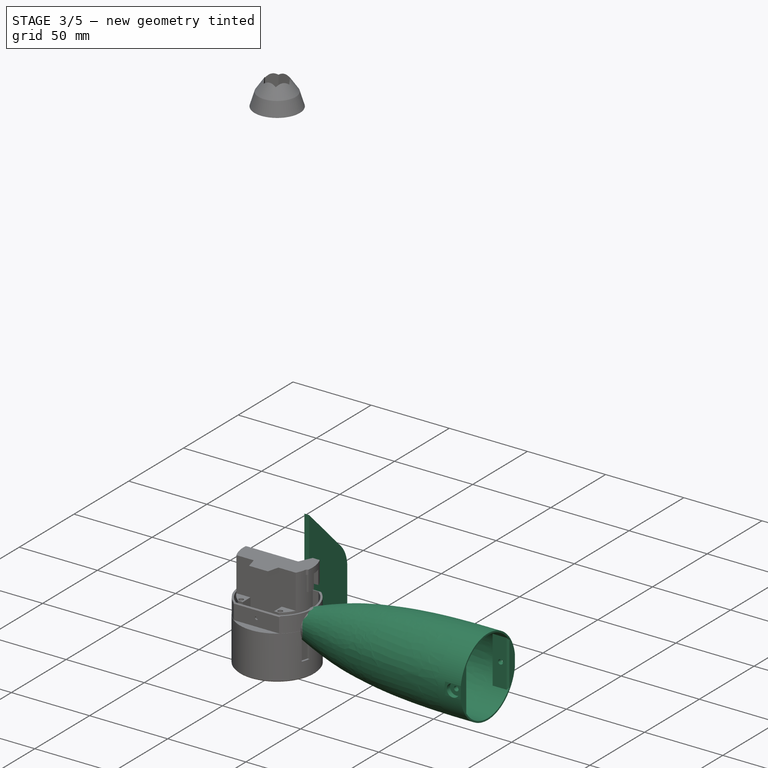
[diagram: stage 3 of 5 — iso view after this stage's code; geometry added in this stage tinted green]
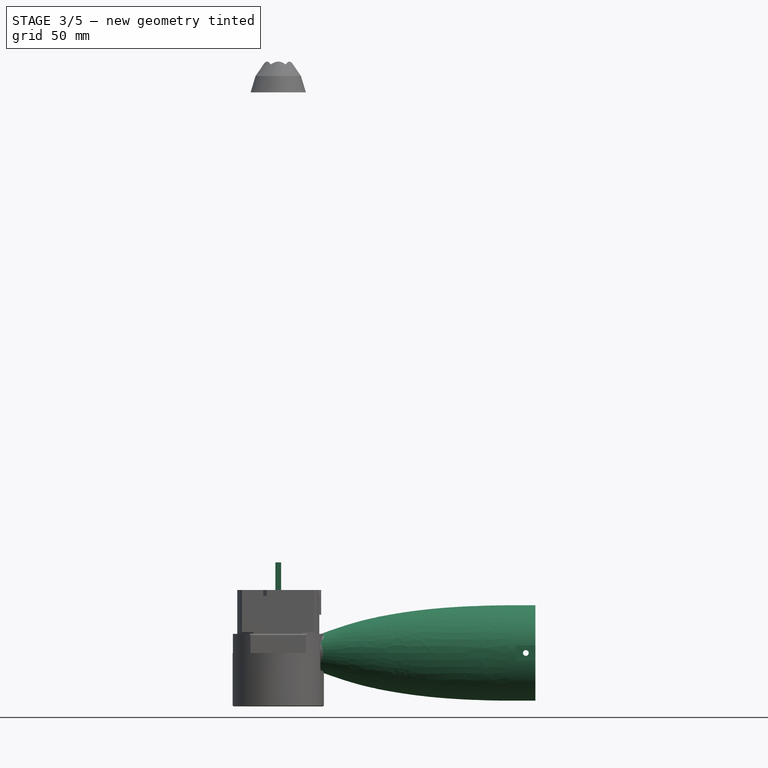
[diagram: stage 3 of 5 — front view after this stage's code; geometry added in this stage tinted green]
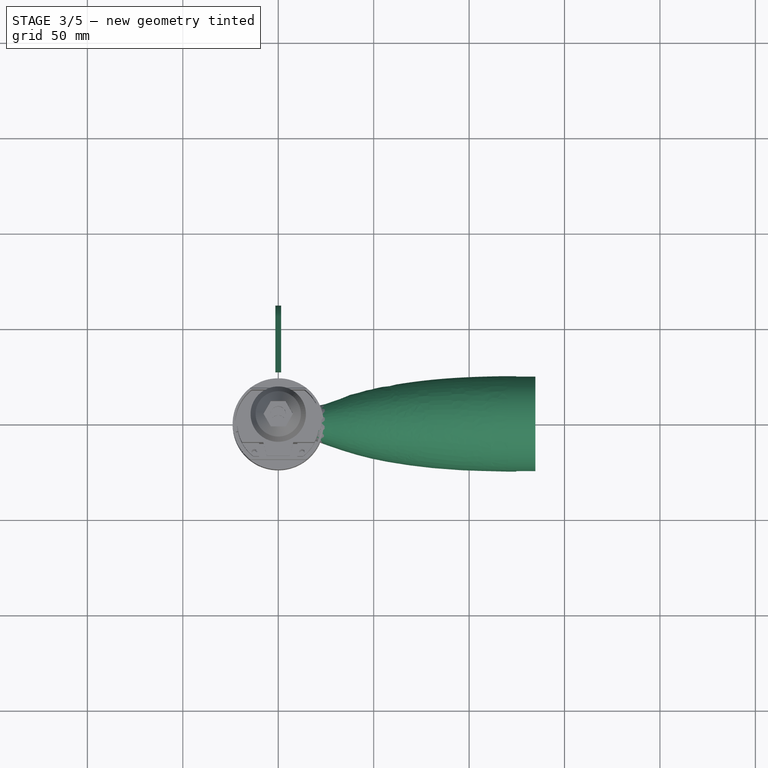
[diagram: stage 3 of 5 — top view after this stage's code; geometry added in this stage tinted green]
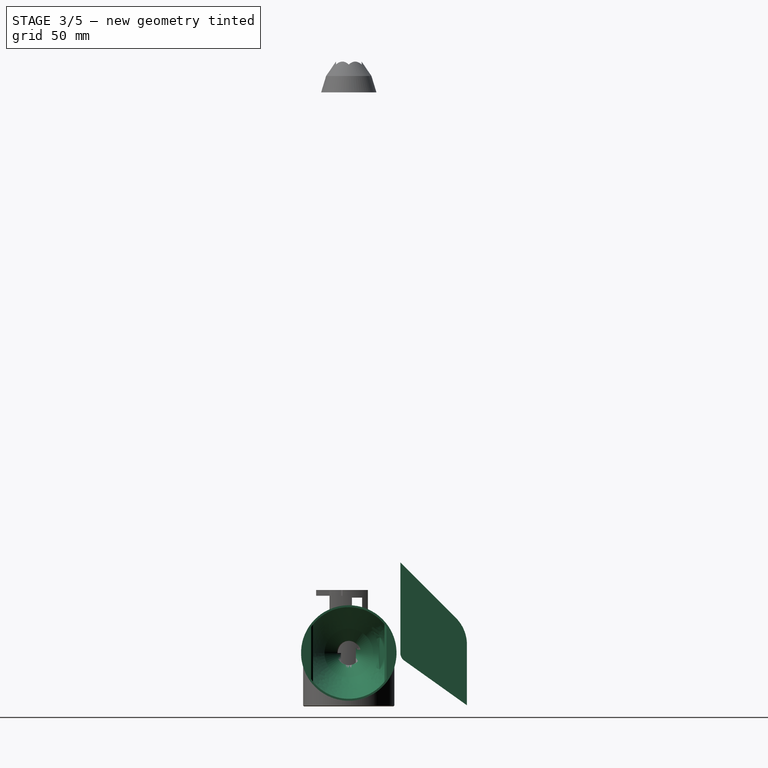
[diagram: stage 3 of 5 — right view after this stage's code; geometry added in this stage tinted green]
FEATURE [PartDesign::Body] Body008  label="ailerons_V003"
  Group = -> [Sketch012,Pad007,Fillet008,Fillet009]
  Origin = -> Origin008
  Placement = pos=(0,0,0) rot=(0,0,1;1.5708rad)
  Tip = -> Fillet009
FEATURE [Sketcher::SketchObject] Sketch013
  FullyConstrained = true
  MapMode = 5
  Placement = pos=(0,0,0) rot=(0.57735,0.57735,0.57735;2.0944rad)
  Support = -> [YZ_Plane009]
  sketch-geometry (4):
    g0: LineSegment StartX=27 StartY=-2.5 StartZ=0 EndX=61.9 EndY=-27.4 EndZ=0
    g1: LineSegment StartX=61.9 StartY=-27.4 StartZ=0 EndX=61.9 EndY=12.6 EndZ=0
    g2: LineSegment StartX=61.9 StartY=12.6 StartZ=0 EndX=27 EndY=47.5 EndZ=0
    g3: LineSegment StartX=27 StartY=47.5 StartZ=0 EndX=27 EndY=-2.5 EndZ=0
  constraints (12):
    c: Coincident(g0,g1)
    c: Vertical(g1)
    c: Coincident(g1,g2)
    c: Coincident(g2,g3)
    c: Coincident(g3,g0)
    c: Vertical(g3)
    c: DistanceY(g3,g3) = 50
    c: DistanceY(g-1,g2) = 47.5
    c: DistanceX(g-2,g0) = 27
    c: Angle(g3,g2) = 0.785398
    c: DistanceY(g1,g1) = 40
    c: DistanceX(g-2,g0) = 61.9
FEATURE [PartDesign::Pad] Pad008
  Direction = (1,1,1)
  Length = 3
  Length2 = 100
  Midplane = true
  Placement = pos=(0,0,0) rot=(0.57735,0.57735,0.57735;2.0944rad)
  Profile = -> Sketch013
  Type = 0
FEATURE [PartDesign::Fillet] Fillet010
  Base = -> Pad008 [Edge5]
  BaseFeature = -> Pad008
  Placement = pos=(0,0,0) rot=(0.57735,0.57735,0.57735;2.0944rad)
  Radius = 20
  SupportTransform = false
  UseAllEdges = false
FEATURE [PartDesign::Fillet] Fillet011
  Base = -> Fillet010 [Edge11]
  BaseFeature = -> Fillet010
  Placement = pos=(0,0,0) rot=(0.57735,0.57735,0.57735;2.0944rad)
  Radius = 5
  SupportTransform = false
  UseAllEdges = false
FEATURE [PartDesign::Body] Body009  label="ailerons_V004"
  Group = -> [Sketch013,Pad008,Fillet010,Fillet011]
  Origin = -> Origin009
  Placement = pos=(0,0,0) rot=(0,0,-1;1.5708rad)
  Tip = -> Fillet011
FEATURE [App::LinkGroup] LinkGroup001  label="ailerons"
  ElementList = -> [Body009,Body008,Body007,Body006]
  LinkMode = 0
FEATURE [Sketcher::SketchObject] Sketch027
  FullyConstrained = true
  MapMode = 5
  Support = -> [XY_Plane015]
  sketch-geometry (12):
    g0: LineSegment StartX=0 StartY=0 StartZ=0 EndX=134.73 EndY=0 EndZ=0
    g1: LineSegment StartX=134.73 StartY=-24 StartZ=0 EndX=134.73 EndY=0 EndZ=0
    g2: LineSegment StartX=134.73 StartY=-24 StartZ=0 EndX=120.272 EndY=-24 EndZ=0
    g3-g7: Circle x5 (B-spline internal-alignment scaffolding for g8; pole/knot coordinates omitted)
    g8: BSplineCurve PolesCount=5 KnotsCount=3 Degree=3 IsPeriodic=0
    g9: GeomPoint X=120.272 Y=-24 Z=0
    g10: GeomPoint X=62.1183 Y=-19.6849 Z=0
    g11: GeomPoint X=0 Y=0 Z=0
  constraints (23):
    c: Coincident(g0,g-1)
    c: PointOnObject(g0,g-1)
    c: Coincident(g1,g0)
    c: Vertical(g1)
    c: Coincident(g2,g1)
    c: Horizontal(g2)
    c: Coincident(g8,g2)
    c: Weight(g3) = 1
    c: Equal(g3, g4-g7) x4
    c: Coincident(g8,g0)
    c: InternalAlignment(g3-g7 -> g8) x5
    c: InternalAlignment(g9,g8)
    c: InternalAlignment(g10,g8)
    c: InternalAlignment(g11,g8)
    c: DistanceX(g6) = 33.4091
    c: DistanceY(g6) = -14.1378
    c: DistanceX(g5) = 61.0359
    c: DistanceY(g5) = -20.426
    c: DistanceX(g4) = 92.9923
    c: DistanceY(g4) = -23.75
    c: DistanceX(g2) = 120.272
    c: DistanceY(g2) = -24
    c: DistanceX(g0,g0) = 134.73
FEATURE [PartDesign::Revolution] Revolution002
  Angle = 360
  Axis = (1,0,0)
  Base = (0,0,0)
  Profile = -> Sketch027
  ReferenceAxis = -> X_Axis015
  Reversed = true
FEATURE [PartDesign::Thickness] Thickness001
  Base = -> Revolution002 [Face1]
  BaseFeature = -> Revolution002
  Intersection = false
  Join = 0
  Mode = 0
  SupportTransform = false
  Value = 1
FEATURE [Sketcher::SketchObject] Sketch028
  FullyConstrained = true
  MapMode = 5
  Placement = pos=(134.73,0,0) rot=(0.57735,0.57735,0.57735;2.0944rad)
  Support = -> [Thickness001]
  sketch-geometry (5):
    g0: Circle CenterX=1.1e-15 CenterY=0 CenterZ=0 NormalX=0 NormalY=0 NormalZ=1 AngleXU=0 Radius=25
    g1: ArcOfCircle CenterX=1.1e-15 CenterY=0 CenterZ=0 NormalX=0 NormalY=0 NormalZ=1 AngleXU=0 Radius=24 StartAngle=0.675132 EndAngle=2.46646
    g2: ArcOfCircle CenterX=1.1e-15 CenterY=0 CenterZ=0 NormalX=0 NormalY=0 NormalZ=1 AngleXU=0 Radius=24 StartAngle=3.81672 EndAngle=5.60805
    g3: LineSegment StartX=-18.735 StartY=15 StartZ=0 EndX=-18.735 EndY=-15 EndZ=0
    g4: LineSegment StartX=18.735 StartY=15 StartZ=0 EndX=18.735 EndY=-15 EndZ=0
  constraints (14):
    c: Coincident(g0,g-1)
    c: Radius(g0) = 25
    c: Coincident(g1,g0)
    c: Coincident(g2,g0)
    c: Symmetric(g2,g2,g-2)
    c: Symmetric(g2,g1,g-1)
    c: Radius(g1) = 24
    c: Equal(g1,g2)
    c: Coincident(g3,g1)
    c: Coincident(g3,g2)
    c: Coincident(g4,g1)
    c: Coincident(g4,g2)
    c: Symmetric(g1,g1,g-2)
    c: DistanceY(g4,g4) = 30
FEATURE [PartDesign::Pad] Pad017
  BaseFeature = -> Thickness001
  Direction = (1,1,1)
  Length = 10
  Length2 = 100
  Profile = -> Sketch028
  Reversed = true
  Type = 0
FEATURE [PartDesign::Chamfer] Chamfer007
  Angle = 45
  Base = -> Pad017 [Edge9,Edge6]
  BaseFeature = -> Pad017
  ChamferType = 0
  FlipDirection = false
  Size = 1
  Size2 = 1
  SupportTransform = false
  UseAllEdges = false
FEATURE [Sketcher::SketchObject] Sketch033
  FullyConstrained = true
  MapMode = 5
  Placement = pos=(0,0,0) rot=(1,0,0;1.5708rad)
  Support = -> [XZ_Plane015]
  sketch-geometry (4):
    g0: LineSegment StartX=-0.5 StartY=0 StartZ=0 EndX=14.5 EndY=0 EndZ=0
    g1: LineSegment StartX=24.4481 StartY=10.14 StartZ=0 EndX=-0.5 EndY=0 EndZ=0
    g2: LineSegment StartX=24.4481 StartY=10.14 StartZ=0 EndX=34.6427 EndY=13.7353 EndZ=0
    g3: LineSegment StartX=34.6427 StartY=13.7353 StartZ=0 EndX=14.5 EndY=0 EndZ=0
  constraints (12):
    c: PointOnObject(g0,g-1)
    c: PointOnObject(g0,g-1)
    c: DistanceX(g0,g0) = 15
    c: DistanceX(g-2,g0) = -0.5
    c: Coincident(g1,g0)
    c: DistanceY(g0,g1) = 10.14
    c: Coincident(g1,g2)
    c: Coincident(g2,g3)
    c: Coincident(g3,g0)
    c: Distance(g3) = 24.38
    c: Distance(g2) = 10.81
    c: Distance(g1) = 26.93
FEATURE [PartDesign::Revolution] Revolution003
  Angle = 360
  Axis = (1,0,0)
  Base = (0,0,0)
  BaseFeature = -> Chamfer007
  Profile = -> Sketch033
  ReferenceAxis = -> Sketch033 [H_Axis]
FEATURE [Sketcher::SketchObject] Sketch035
  ExternalGeometry = -> [Revolution003]
  FullyConstrained = true
  MapMode = 5
  Placement = pos=(0,0,0) rot=(1,0,0;1.5708rad)
  Support = -> [XZ_Plane015]
  sketch-geometry (1):
    g0: Circle CenterX=129.73 CenterY=0 CenterZ=0 NormalX=0 NormalY=0 NormalZ=1 AngleXU=0 Radius=1.5
  constraints (3):
    c: PointOnObject(g0,g-1)
    c: Diameter(g0) = 3
    c: Distance(g0,g-3) = 5
FEATURE [PartDesign::Pocket] Pocket009
  BaseFeature = -> Revolution003
  Direction = (0,1,2e-16)
  Length = 200
  Length2 = 5
  Midplane = true
  Profile = -> Sketch035
  ReferenceAxis = -> Sketch035 [N_Axis]
  Type = 0
FEATURE [Sketcher::SketchObject] Sketch036
  ExternalGeometry = -> [Pocket009]
  FullyConstrained = true
  MapMode = 5
  Placement = pos=(134.73,0,0) rot=(0.57735,0.57735,0.57735;2.0944rad)
  Support = -> [Pocket009]
  sketch-geometry (8):
    g0: LineSegment StartX=-24.6779 StartY=4 StartZ=0 EndX=-29.6779 EndY=4 EndZ=0
    g1: LineSegment StartX=-29.6779 StartY=4 StartZ=0 EndX=-29.6779 EndY=-4 EndZ=0
    g2: LineSegment StartX=-29.6779 StartY=-4 StartZ=0 EndX=-24.6779 EndY=-4 EndZ=0
    g3: LineSegment StartX=-24.6779 StartY=-4 StartZ=0 EndX=-24.6779 EndY=4 EndZ=0
    g4: LineSegment StartX=24.6779 StartY=4 StartZ=0 EndX=29.6779 EndY=4 EndZ=0
    g5: LineSegment StartX=29.6779 StartY=4 StartZ=0 EndX=29.6779 EndY=-4 EndZ=0
    g6: LineSegment StartX=29.6779 StartY=-4 StartZ=0 EndX=24.6779 EndY=-4 EndZ=0
    g7: LineSegment StartX=24.6779 StartY=-4 StartZ=0 EndX=24.6779 EndY=4 EndZ=0
  constraints (21):
    c: Coincident(g0,g1)
    c: Coincident(g1,g2)
    c: Coincident(g2,g3)
    c: Coincident(g3,g0)
    c: Horizontal(g0)
    c: Horizontal(g2)
    c: Vertical(g3)
    c: PointOnObject(g0,g-3)
    c: Coincident(g4,g5)
    c: Coincident(g5,g6)
    c: Coincident(g6,g7)
    c: Coincident(g7,g4)
    c: Horizontal(g6)
    c: Vertical(g7)
    c: PointOnObject(g4,g-3)
    c: Symmetric(g1,g0,g-1)
    c: DistanceY(g3,g3) = 8
    c: DistanceX(g0,g0) = 5
    c: Symmetric(g5,g1,g-2)
    c: Symmetric(g4,g0,g-2)
    c: Horizontal(g4)
FEATURE [PartDesign::Pocket] Pocket010
  BaseFeature = -> Pocket009
  Direction = (-1,0,0)
  Length = 10
  Length2 = 5
  Profile = -> Sketch036
  ReferenceAxis = -> Sketch036 [N_Axis]
  Type = 0
FEATURE [Sketcher::SketchObject] Sketch037
  ExternalGeometry = -> [Pocket010]
  FullyConstrained = true
  MapMode = 5
  Placement = pos=(0,-24.6779,0) rot=(1,0,0;1.5708rad)
  Support = -> [Pocket010]
  sketch-geometry (1):
    g0: Circle CenterX=129.73 CenterY=0 CenterZ=0 NormalX=0 NormalY=0 NormalZ=1 AngleXU=0 Radius=4
  constraints (2):
    c: Coincident(g0,g-3)
    c: Diameter(g0) = 8
FEATURE [PartDesign::Pocket] Pocket011
  BaseFeature = -> Pocket010
  Direction = (0,1,-2e-16)
  Length = 3
  Length2 = 5
  Profile = -> Sketch037
  ReferenceAxis = -> Sketch037 [N_Axis]
  Type = 0
FEATURE [Sketcher::SketchObject] Sketch038
  ExternalGeometry = -> [Pocket011]
  FullyConstrained = true
  MapMode = 5
  Placement = pos=(0,24.6779,0) rot=(0,0.707107,0.707107;3.14159rad)
  Support = -> [Pocket011]
  sketch-geometry (1):
    g0: Circle CenterX=-129.73 CenterY=0 CenterZ=0 NormalX=0 NormalY=0 NormalZ=1 AngleXU=0 Radius=4
  constraints (2):
    c: Coincident(g0,g-3)
    c: Diameter(g0) = 8
FEATURE [PartDesign::Pocket] Pocket012
  BaseFeature = -> Pocket011
  Direction = (0,-1,2e-16)
  Length = 3
  Length2 = 5
  Profile = -> Sketch038
  ReferenceAxis = -> Sketch038 [N_Axis]
  Type = 0
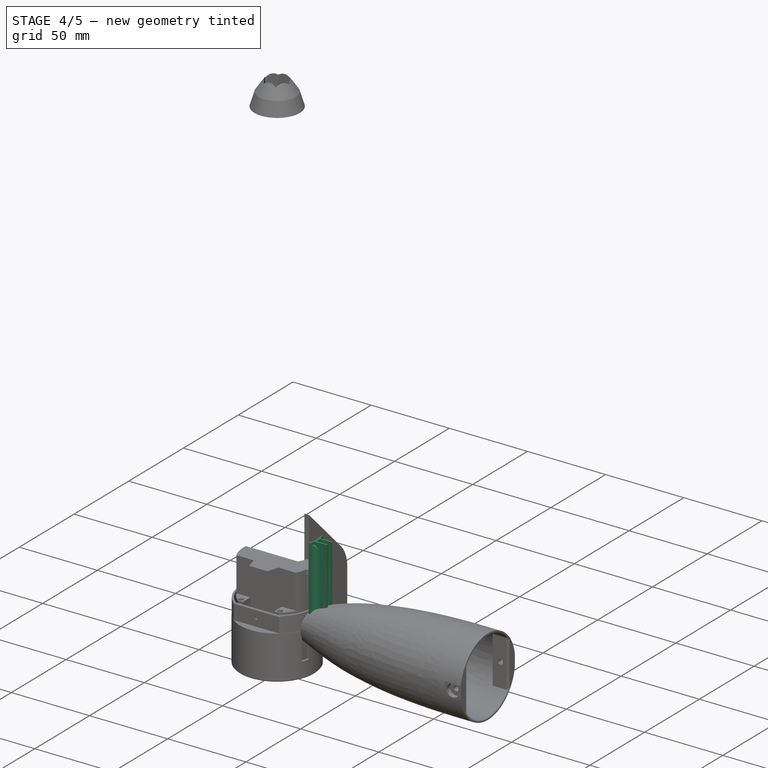
[diagram: stage 4 of 5 — iso view after this stage's code; geometry added in this stage tinted green]
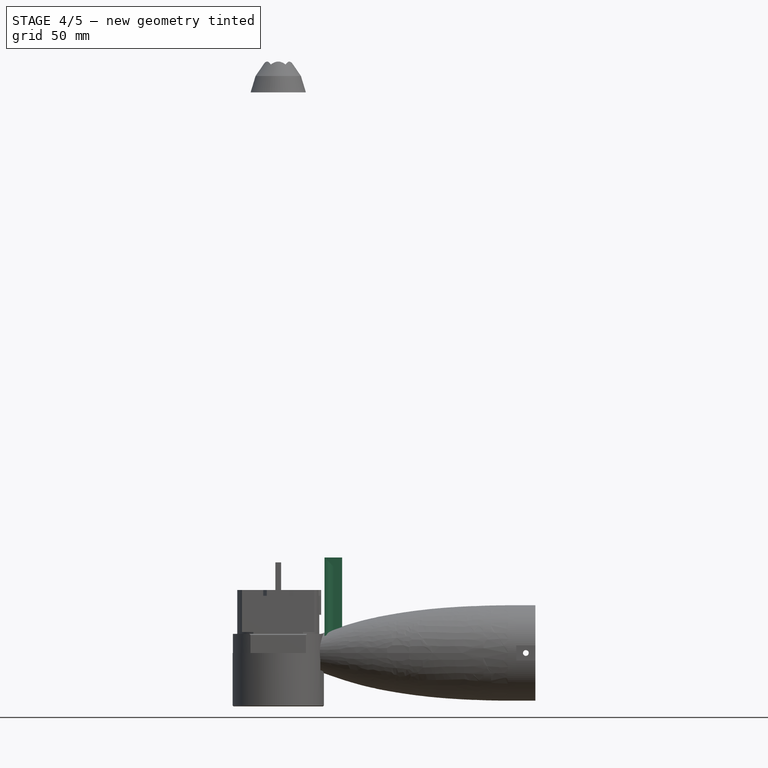
[diagram: stage 4 of 5 — front view after this stage's code; geometry added in this stage tinted green]
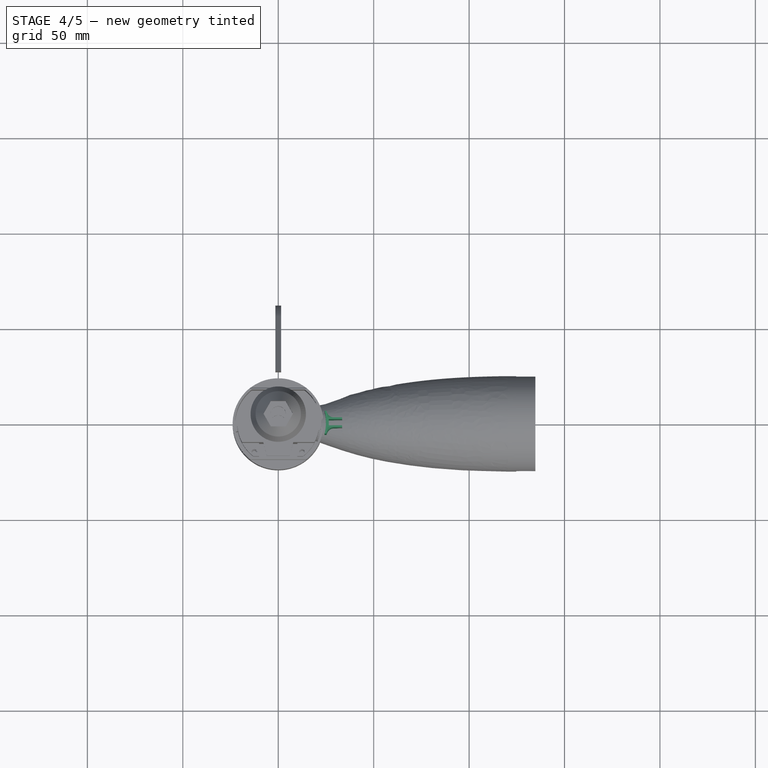
[diagram: stage 4 of 5 — top view after this stage's code; geometry added in this stage tinted green]
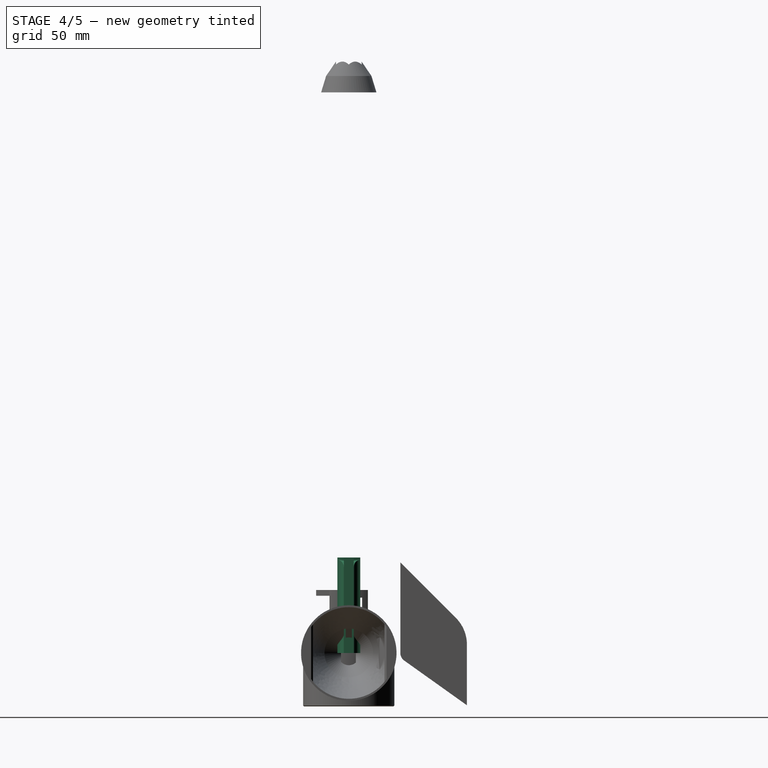
[diagram: stage 4 of 5 — right view after this stage's code; geometry added in this stage tinted green]
FEATURE [PartDesign::Body] Body003  label="support_aileron_V002"
  Group = -> [Sketch004,Pad002,Fillet001,Sketch005,Pocket001]
  Origin = -> Origin003
  Placement = pos=(0,0,0) rot=(0,0,1;1.5708rad)
  Tip = -> Pocket001
FEATURE [Sketcher::SketchObject] Sketch006
  FullyConstrained = true
  MapMode = 5
  Support = -> [XY_Plane004]
  sketch-geometry (12):
    g0: ArcOfCircle CenterX=0 CenterY=0 CenterZ=0 NormalX=0 NormalY=0 NormalZ=1 AngleXU=0 Radius=25 StartAngle=6.04082 EndAngle=6.52555
    g1: LineSegment StartX=24.2693 StartY=-6 StartZ=0 EndX=25.2982 EndY=-6 EndZ=0
    g2: LineSegment StartX=24.2693 StartY=6 StartZ=0 EndX=25.2982 EndY=6 EndZ=0
    g3: LineSegment StartX=25.8697 StartY=2.6 StartZ=0 EndX=33.4517 EndY=2.6 EndZ=0
    g4: LineSegment StartX=33.4517 StartY=2.6 StartZ=0 EndX=33.4517 EndY=1.6 EndZ=0
    g5: LineSegment StartX=33.4517 StartY=1.6 StartZ=0 EndX=26.4517 EndY=1.6 EndZ=0
    g6: LineSegment StartX=26.4517 StartY=1.6 StartZ=0 EndX=26.4517 EndY=-1.6 EndZ=0
    g7: LineSegment StartX=26.4517 StartY=-1.6 StartZ=0 EndX=33.4517 EndY=-1.6 EndZ=0
    g8: LineSegment StartX=33.4517 StartY=-1.6 StartZ=0 EndX=33.4517 EndY=-2.6 EndZ=0
    g9: LineSegment StartX=33.4517 StartY=-2.6 StartZ=0 EndX=25.8697 EndY=-2.6 EndZ=0
    g10: ArcOfCircle CenterX=0 CenterY=0 CenterZ=0 NormalX=0 NormalY=0 NormalZ=1 AngleXU=0 Radius=26 StartAngle=6.05032 EndAngle=6.18302
    g11: ArcOfCircle CenterX=0 CenterY=0 CenterZ=0 NormalX=0 NormalY=0 NormalZ=1 AngleXU=0 Radius=26 StartAngle=0.100167 EndAngle=0.232868
  constraints (33):
    c: Coincident(g0,g-1)
    c: Radius(g0) = 25
    c: Coincident(g0,g1)
    c: Coincident(g0,g2)
    c: Horizontal(g3)
    c: Coincident(g3,g4)
    c: Coincident(g4,g5)
    c: Horizontal(g5)
    c: Coincident(g5,g6)
    c: Coincident(g6,g7)
    c: Horizontal(g7)
    c: Coincident(g7,g8)
    c: Coincident(g8,g9)
    c: Horizontal(g9)
    c: Coincident(g10,g0)
    c: Coincident(g10,g1)
    c: Coincident(g10,g9)
    c: Coincident(g11,g0)
    c: Coincident(g11,g2)
    c: Coincident(g11,g3)
    c: Radius(g11) = 26
    c: Horizontal(g2)
    c: Horizontal(g1)
    c: Symmetric(g7,g4,g-1)
    c: Vertical(g8)
    c: Vertical(g6)
    c: Distance(g6,g5) = 3.2
    c: DistanceY(g4,g4) = 1
    c: Distance(g5,g0) = 26.5
    c: Symmetric(g3,g8,g-1)
    c: DistanceX(g5,g5) = 7
    c: Symmetric(g2,g1,g-1)
    c: DistanceY(g-1,g2) = 6
FEATURE [PartDesign::Pad] Pad003
  Direction = (1,1,1)
  Length = 50
  Length2 = 100
  Profile = -> Sketch006
  Type = 0
FEATURE [PartDesign::Body] Body004  label="support_aileron_V003"
  Group = -> [Sketch006,Pad003,Fillet002,Sketch007,Pocket002]
  Origin = -> Origin004
  Placement = pos=(0,0,0) rot=(0,0,1;3.14159rad)
  Tip = -> Pocket002
FEATURE [Sketcher::SketchObject] Sketch008
  FullyConstrained = true
  MapMode = 5
  Support = -> [XY_Plane005]
  sketch-geometry (12):
    g0: ArcOfCircle CenterX=0 CenterY=0 CenterZ=0 NormalX=0 NormalY=0 NormalZ=1 AngleXU=0 Radius=25 StartAngle=6.04082 EndAngle=6.52555
    g1: LineSegment StartX=24.2693 StartY=-6 StartZ=0 EndX=25.2982 EndY=-6 EndZ=0
    g2: LineSegment StartX=24.2693 StartY=6 StartZ=0 EndX=25.2982 EndY=6 EndZ=0
    g3: LineSegment StartX=25.8697 StartY=2.6 StartZ=0 EndX=33.4517 EndY=2.6 EndZ=0
    g4: LineSegment StartX=33.4517 StartY=2.6 StartZ=0 EndX=33.4517 EndY=1.6 EndZ=0
    g5: LineSegment StartX=33.4517 StartY=1.6 StartZ=0 EndX=26.4517 EndY=1.6 EndZ=0
    g6: LineSegment StartX=26.4517 StartY=1.6 StartZ=0 EndX=26.4517 EndY=-1.6 EndZ=0
    g7: LineSegment StartX=26.4517 StartY=-1.6 StartZ=0 EndX=33.4517 EndY=-1.6 EndZ=0
    g8: LineSegment StartX=33.4517 StartY=-1.6 StartZ=0 EndX=33.4517 EndY=-2.6 EndZ=0
    g9: LineSegment StartX=33.4517 StartY=-2.6 StartZ=0 EndX=25.8697 EndY=-2.6 EndZ=0
    g10: ArcOfCircle CenterX=0 CenterY=0 CenterZ=0 NormalX=0 NormalY=0 NormalZ=1 AngleXU=0 Radius=26 StartAngle=6.05032 EndAngle=6.18302
    g11: ArcOfCircle CenterX=0 CenterY=0 CenterZ=0 NormalX=0 NormalY=0 NormalZ=1 AngleXU=0 Radius=26 StartAngle=0.100167 EndAngle=0.232868
  constraints (33):
    c: Coincident(g0,g-1)
    c: Radius(g0) = 25
    c: Coincident(g0,g1)
    c: Coincident(g0,g2)
    c: Horizontal(g3)
    c: Coincident(g3,g4)
    c: Coincident(g4,g5)
    c: Horizontal(g5)
    c: Coincident(g5,g6)
    c: Coincident(g6,g7)
    c: Horizontal(g7)
    c: Coincident(g7,g8)
    c: Coincident(g8,g9)
    c: Horizontal(g9)
    c: Coincident(g10,g0)
    c: Coincident(g10,g1)
    c: Coincident(g10,g9)
    c: Coincident(g11,g0)
    c: Coincident(g11,g2)
    c: Coincident(g11,g3)
    c: Radius(g11) = 26
    c: Horizontal(g2)
    c: Horizontal(g1)
    c: Symmetric(g7,g4,g-1)
    c: Vertical(g8)
    c: Vertical(g6)
    c: Distance(g6,g5) = 3.2
    c: DistanceY(g4,g4) = 1
    c: Distance(g5,g0) = 26.5
    c: Symmetric(g3,g8,g-1)
    c: DistanceX(g5,g5) = 7
    c: Symmetric(g2,g1,g-1)
    c: DistanceY(g-1,g2) = 6
FEATURE [PartDesign::Pad] Pad004
  Direction = (1,1,1)
  Length = 50
  Length2 = 100
  Profile = -> Sketch008
  Type = 0
FEATURE [PartDesign::Fillet] Fillet003
  Base = -> Pad004 [Edge20,Edge1]
  BaseFeature = -> Pad004
  Radius = 4
  SupportTransform = false
  UseAllEdges = false
FEATURE [Sketcher::SketchObject] Sketch009
  ExternalGeometry = -> [Fillet003]
  FullyConstrained = true
  MapMode = 5
  Placement = pos=(0,-2.6,0) rot=(1,0,0;1.5708rad)
  Support = -> [Fillet003]
  sketch-geometry (3):
    g0: LineSegment StartX=33.4517 StartY=50 StartZ=0 EndX=33.4517 EndY=40.8177 EndZ=0
    g1: LineSegment StartX=33.4517 StartY=40.8177 StartZ=0 EndX=24.2693 EndY=50 EndZ=0
    g2: LineSegment StartX=24.2693 StartY=50 StartZ=0 EndX=33.4517 EndY=50 EndZ=0
  constraints (8):
    c: Coincident(g-4,g0)
    c: PointOnObject(g0,g-4)
    c: Coincident(g0,g1)
    c: PointOnObject(g1,g-3)
    c: Coincident(g1,g2)
    c: Coincident(g2,g0)
    c: Horizontal(g2)
    c: Angle(g1,g2) = 0.785398
FEATURE [PartDesign::Pocket] Pocket003
  BaseFeature = -> Fillet003
  Direction = (1,1,1)
  Length = 23
  Length2 = 100
  Midplane = true
  Profile = -> Sketch009
  Type = 1
FEATURE [PartDesign::Body] Body005  label="support_aileron_V004"
  Group = -> [Sketch008,Pad004,Fillet003,Sketch009,Pocket003]
  Origin = -> Origin005
  Placement = pos=(0,0,0) rot=(0,0,-1;1.5708rad)
  Tip = -> Pocket003
FEATURE [App::LinkGroup] LinkGroup  label="support_ailerons_V1"
  ElementList = -> [Body005,Body004,Body003,Body002]
  LinkMode = 0
FEATURE [Sketcher::SketchObject] Sketch010
  FullyConstrained = true
  MapMode = 5
  Placement = pos=(0,0,0) rot=(0.57735,0.57735,0.57735;2.0944rad)
  Support = -> [YZ_Plane006]
  sketch-geometry (4):
    g0: LineSegment StartX=27 StartY=-2.5 StartZ=0 EndX=61.9 EndY=-27.4 EndZ=0
    g1: LineSegment StartX=61.9 StartY=-27.4 StartZ=0 EndX=61.9 EndY=12.6 EndZ=0
    g2: LineSegment StartX=61.9 StartY=12.6 StartZ=0 EndX=27 EndY=47.5 EndZ=0
    g3: LineSegment StartX=27 StartY=47.5 StartZ=0 EndX=27 EndY=-2.5 EndZ=0
  constraints (12):
    c: Coincident(g0,g1)
    c: Vertical(g1)
    c: Coincident(g1,g2)
    c: Coincident(g2,g3)
    c: Coincident(g3,g0)
    c: Vertical(g3)
    c: DistanceY(g3,g3) = 50
    c: DistanceY(g-1,g2) = 47.5
    c: DistanceX(g-2,g0) = 27
    c: Angle(g3,g2) = 0.785398
    c: DistanceY(g1,g1) = 40
    c: DistanceX(g-2,g0) = 61.9
FEATURE [PartDesign::Pad] Pad005
  Direction = (1,1,1)
  Length = 3
  Length2 = 100
  Midplane = true
  Placement = pos=(0,0,0) rot=(0.57735,0.57735,0.57735;2.0944rad)
  Profile = -> Sketch010
  Type = 0
FEATURE [PartDesign::Fillet] Fillet004
  Base = -> Pad005 [Edge5]
  BaseFeature = -> Pad005
  Placement = pos=(0,0,0) rot=(0.57735,0.57735,0.57735;2.0944rad)
  Radius = 20
  SupportTransform = false
  UseAllEdges = false
FEATURE [PartDesign::Fillet] Fillet005
  Base = -> Fillet004 [Edge11]
  BaseFeature = -> Fillet004
  Placement = pos=(0,0,0) rot=(0.57735,0.57735,0.57735;2.0944rad)
  Radius = 5
  SupportTransform = false
  UseAllEdges = false
FEATURE [PartDesign::Body] Body006  label="ailerons_V1"
  Group = -> [Sketch010,Pad005,Fillet004,Fillet005]
  Origin = -> Origin006
  Tip = -> Fillet005
FEATURE [Sketcher::SketchObject] Sketch011
  FullyConstrained = true
  MapMode = 5
  Placement = pos=(0,0,0) rot=(0.57735,0.57735,0.57735;2.0944rad)
  Support = -> [YZ_Plane007]
  sketch-geometry (4):
    g0: LineSegment StartX=27 StartY=-2.5 StartZ=0 EndX=61.9 EndY=-27.4 EndZ=0
    g1: LineSegment StartX=61.9 StartY=-27.4 StartZ=0 EndX=61.9 EndY=12.6 EndZ=0
    g2: LineSegment StartX=61.9 StartY=12.6 StartZ=0 EndX=27 EndY=47.5 EndZ=0
    g3: LineSegment StartX=27 StartY=47.5 StartZ=0 EndX=27 EndY=-2.5 EndZ=0
  constraints (12):
    c: Coincident(g0,g1)
    c: Vertical(g1)
    c: Coincident(g1,g2)
    c: Coincident(g2,g3)
    c: Coincident(g3,g0)
    c: Vertical(g3)
    c: DistanceY(g3,g3) = 50
    c: DistanceY(g-1,g2) = 47.5
    c: DistanceX(g-2,g0) = 27
    c: Angle(g3,g2) = 0.785398
    c: DistanceY(g1,g1) = 40
    c: DistanceX(g-2,g0) = 61.9
FEATURE [PartDesign::Pad] Pad006
  Direction = (1,1,1)
  Length = 3
  Length2 = 100
  Midplane = true
  Placement = pos=(0,0,0) rot=(0.57735,0.57735,0.57735;2.0944rad)
  Profile = -> Sketch011
  Type = 0
FEATURE [PartDesign::Fillet] Fillet006
  Base = -> Pad006 [Edge5]
  BaseFeature = -> Pad006
  Placement = pos=(0,0,0) rot=(0.57735,0.57735,0.57735;2.0944rad)
  Radius = 20
  SupportTransform = false
  UseAllEdges = false
FEATURE [PartDesign::Fillet] Fillet007
  Base = -> Fillet006 [Edge11]
  BaseFeature = -> Fillet006
  Placement = pos=(0,0,0) rot=(0.57735,0.57735,0.57735;2.0944rad)
  Radius = 5
  SupportTransform = false
  UseAllEdges = false
FEATURE [PartDesign::Body] Body007  label="ailerons_V002"
  Group = -> [Sketch011,Pad006,Fillet006,Fillet007]
  Origin = -> Origin007
  Placement = pos=(0,0,0) rot=(0,0,1;3.14159rad)
  Tip = -> Fillet007
FEATURE [Sketcher::SketchObject] Sketch012
  FullyConstrained = true
  MapMode = 5
  Placement = pos=(0,0,0) rot=(0.57735,0.57735,0.57735;2.0944rad)
  Support = -> [YZ_Plane008]
  sketch-geometry (4):
    g0: LineSegment StartX=27 StartY=-2.5 StartZ=0 EndX=61.9 EndY=-27.4 EndZ=0
    g1: LineSegment StartX=61.9 StartY=-27.4 StartZ=0 EndX=61.9 EndY=12.6 EndZ=0
    g2: LineSegment StartX=61.9 StartY=12.6 StartZ=0 EndX=27 EndY=47.5 EndZ=0
    g3: LineSegment StartX=27 StartY=47.5 StartZ=0 EndX=27 EndY=-2.5 EndZ=0
  constraints (12):
    c: Coincident(g0,g1)
    c: Vertical(g1)
    c: Coincident(g1,g2)
    c: Coincident(g2,g3)
    c: Coincident(g3,g0)
    c: Vertical(g3)
    c: DistanceY(g3,g3) = 50
    c: DistanceY(g-1,g2) = 47.5
    c: DistanceX(g-2,g0) = 27
    c: Angle(g3,g2) = 0.785398
    c: DistanceY(g1,g1) = 40
    c: DistanceX(g-2,g0) = 61.9
FEATURE [PartDesign::Pad] Pad007
  Direction = (1,1,1)
  Length = 3
  Length2 = 100
  Midplane = true
  Placement = pos=(0,0,0) rot=(0.57735,0.57735,0.57735;2.0944rad)
  Profile = -> Sketch012
  Type = 0
FEATURE [PartDesign::Fillet] Fillet008
  Base = -> Pad007 [Edge5]
  BaseFeature = -> Pad007
  Placement = pos=(0,0,0) rot=(0.57735,0.57735,0.57735;2.0944rad)
  Radius = 20
  SupportTransform = false
  UseAllEdges = false
FEATURE [PartDesign::Fillet] Fillet009
  Base = -> Fillet008 [Edge11]
  BaseFeature = -> Fillet008
  Placement = pos=(0,0,0) rot=(0.57735,0.57735,0.57735;2.0944rad)
  Radius = 5
  SupportTransform = false
  UseAllEdges = false
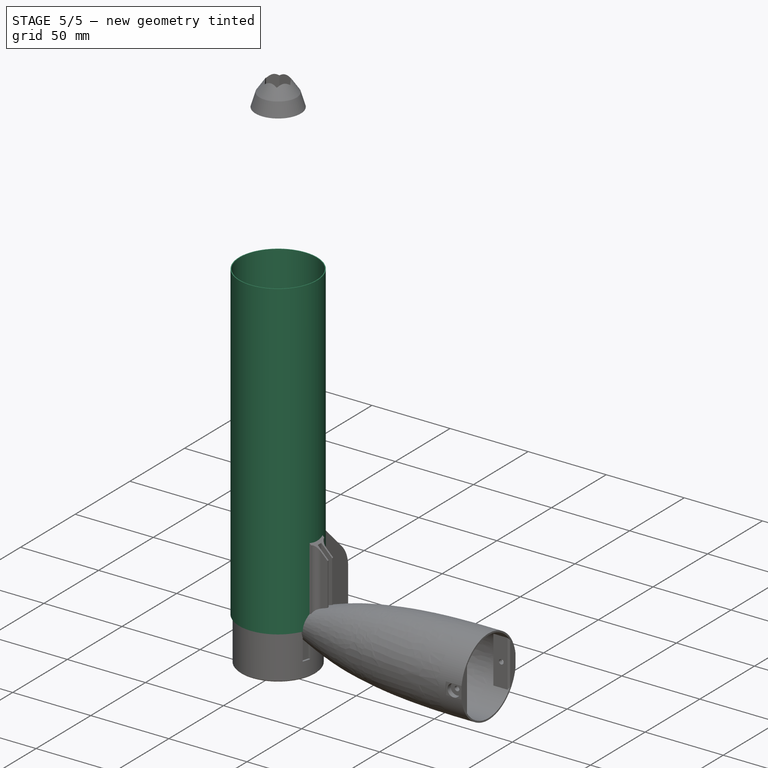
[diagram: stage 5 of 5 — iso view after this stage's code; geometry added in this stage tinted green]
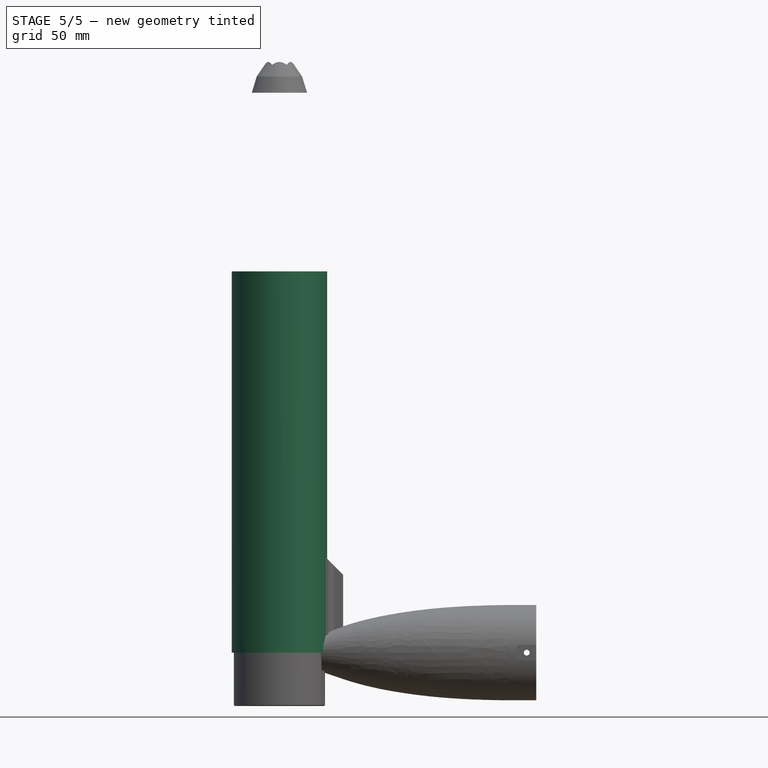
[diagram: stage 5 of 5 — front view after this stage's code; geometry added in this stage tinted green]
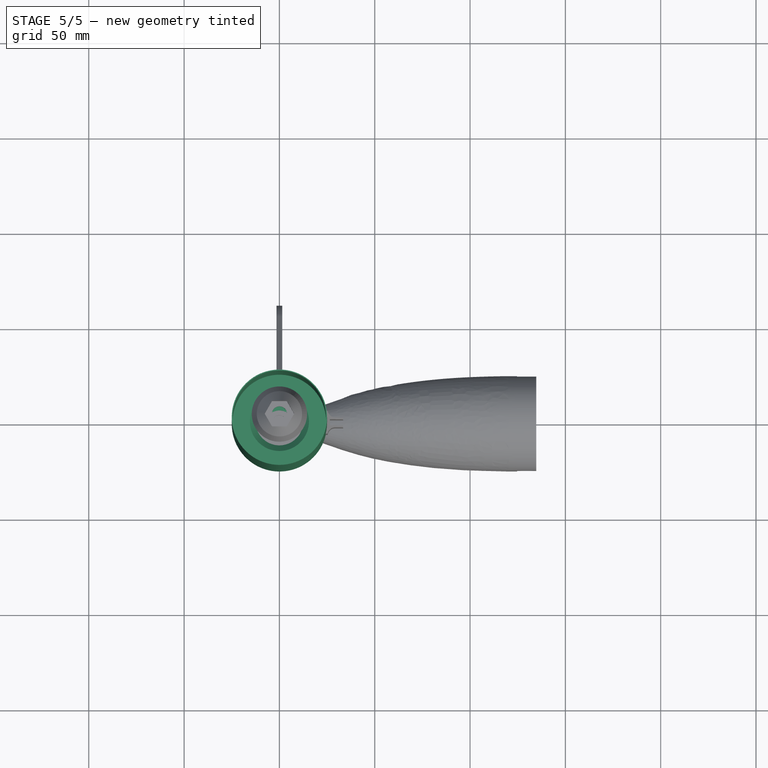
[diagram: stage 5 of 5 — top view after this stage's code; geometry added in this stage tinted green]
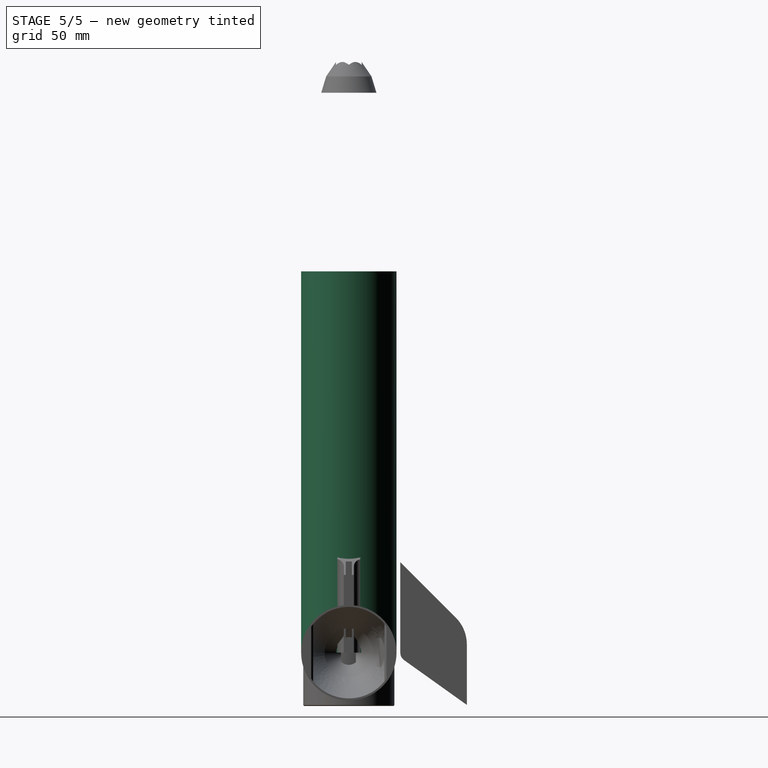
[diagram: stage 5 of 5 — right view after this stage's code; geometry added in this stage tinted green]
FEATURE [Sketcher::SketchObject] Sketch
  FullyConstrained = true
  MapMode = 5
  Placement = pos=(0,0,0) rot=(1,0,0;1.5708rad)
  Support = -> [XZ_Plane]
  sketch-geometry (12):
    g0: LineSegment StartX=24 StartY=0 StartZ=0 EndX=7 EndY=0 EndZ=0
    g1: LineSegment StartX=7 StartY=0 StartZ=0 EndX=7 EndY=3 EndZ=0
    g2: LineSegment StartX=7 StartY=3 StartZ=0 EndX=12.5 EndY=3 EndZ=0
    g3: LineSegment StartX=12.5 StartY=3 StartZ=0 EndX=12.5 EndY=73 EndZ=0
    g4: LineSegment StartX=12.5 StartY=73 StartZ=0 EndX=25 EndY=73 EndZ=0
    g5: LineSegment StartX=25 StartY=73 StartZ=0 EndX=25 EndY=71 EndZ=0
    g6: LineSegment StartX=25 StartY=71 StartZ=0 EndX=24 EndY=70 EndZ=0
    g7: LineSegment StartX=24 StartY=70 StartZ=0 EndX=24 EndY=65 EndZ=0
    g8: LineSegment StartX=24 StartY=65 StartZ=0 EndX=15.5 EndY=56.5 EndZ=0
    g9: LineSegment StartX=15.5 StartY=56.5 StartZ=0 EndX=15.5 EndY=5 EndZ=0
    g10: LineSegment StartX=15.5 StartY=5 StartZ=0 EndX=24 EndY=5 EndZ=0
    g11: LineSegment StartX=24 StartY=5 StartZ=0 EndX=24 EndY=0 EndZ=0
  constraints (36):
    c: PointOnObject(g0,g-1)
    c: PointOnObject(g0,g-1)
    c: Coincident(g0,g1)
    c: Vertical(g1)
    c: Coincident(g1,g2)
    c: Horizontal(g2)
    c: Coincident(g2,g3)
    c: Vertical(g3)
    c: Coincident(g3,g4)
    c: Horizontal(g4)
    c: Coincident(g4,g5)
    c: Coincident(g5,g6)
    c: Coincident(g6,g7)
    c: Vertical(g7)
    c: Coincident(g7,g8)
    c: Coincident(g8,g9)
    c: Vertical(g9)
    c: Coincident(g9,g10)
    c: Horizontal(g10)
    c: Coincident(g10,g11)
    c: Coincident(g11,g0)
    c: DistanceX(g-2,g2) = 12.5
    c: DistanceY(g3,g3) = 70
    c: DistanceY(g1,g1) = 3
    c: DistanceX(g-2,g4) = 25
    c: Vertical(g5)
    c: DistanceY(g5,g5) = 2
    c: DistanceY(g7,g7) = 5
    c: DistanceX(g-1,g0) = 24
    c: DistanceX(g-2,g7) = 24
    c: Distance(g9,g3) = 3
    c: DistanceY(g11,g11) = 5
    c: Angle(g9,g8) = 2.35619
    c: Angle(g7,g6) = 2.35619
    c: Vertical(g11)
    c: DistanceX(g-2,g0) = 7
FEATURE [PartDesign::Revolution] Revolution
  Angle = 360
  Axis = (0,-2e-16,1)
  Base = (0,0,0)
  Placement = pos=(0,0,0) rot=(1,0,0;1.5708rad)
  Profile = -> Sketch
  ReferenceAxis = -> Sketch [V_Axis]
  Reversed = true
FEATURE [PartDesign::Chamfer] Chamfer
  Angle = 45
  Base = -> Revolution [Edge6]
  BaseFeature = -> Revolution
  ChamferType = 0
  FlipDirection = false
  Placement = pos=(0,0,0) rot=(1,0,0;1.5708rad)
  Size = 3
  Size2 = 1
  SupportTransform = false
  UseAllEdges = false
FEATURE [PartDesign::Chamfer] Chamfer001
  Angle = 45
  Base = -> Chamfer [Edge12]
  BaseFeature = -> Chamfer
  ChamferType = 0
  FlipDirection = false
  Placement = pos=(0,0,0) rot=(1,0,0;1.5708rad)
  Size = 2
  Size2 = 1
  SupportTransform = false
  UseAllEdges = false
FEATURE [PartDesign::Body] Body  label="support_moteur_V1"
  Group = -> [Sketch,Revolution,Chamfer,Chamfer001]
  Origin = -> Origin
  Placement = pos=(7e-15,0,71) rot=(0,1,0;3.14159rad)
  Tip = -> Chamfer001
FEATURE [Sketcher::SketchObject] Sketch001
  FullyConstrained = true
  MapMode = 5
  Support = -> [XY_Plane001]
  sketch-geometry (2):
    g0: Circle CenterX=0 CenterY=0 CenterZ=0 NormalX=0 NormalY=0 NormalZ=1 AngleXU=0 Radius=24.5
    g1: Circle CenterX=0 CenterY=0 CenterZ=0 NormalX=0 NormalY=0 NormalZ=1 AngleXU=0 Radius=25
  constraints (4):
    c: Radius(g0) = 24.5
    c: Radius(g1) = 25
    c: Coincident(g0,g-1)
    c: Coincident(g1,g0)
FEATURE [PartDesign::Pad] Pad
  Direction = (1,1,1)
  Length = 200
  Length2 = 100
  Profile = -> Sketch001
  Type = 0
FEATURE [PartDesign::Body] Body001  label="tube_V1"
  Group = -> [Sketch001,Pad]
  Origin = -> Origin001
  Tip = -> Pad
FEATURE [Sketcher::SketchObject] Sketch002
  FullyConstrained = true
  MapMode = 5
  Support = -> [XY_Plane002]
  sketch-geometry (12):
    g0: ArcOfCircle CenterX=0 CenterY=0 CenterZ=0 NormalX=0 NormalY=0 NormalZ=1 AngleXU=0 Radius=25 StartAngle=6.04082 EndAngle=6.52555
    g1: LineSegment StartX=24.2693 StartY=-6 StartZ=0 EndX=25.2982 EndY=-6 EndZ=0
    g2: LineSegment StartX=24.2693 StartY=6 StartZ=0 EndX=25.2982 EndY=6 EndZ=0
    g3: LineSegment StartX=25.8697 StartY=2.6 StartZ=0 EndX=33.4517 EndY=2.6 EndZ=0
    g4: LineSegment StartX=33.4517 StartY=2.6 StartZ=0 EndX=33.4517 EndY=1.6 EndZ=0
    g5: LineSegment StartX=33.4517 StartY=1.6 StartZ=0 EndX=26.4517 EndY=1.6 EndZ=0
    g6: LineSegment StartX=26.4517 StartY=1.6 StartZ=0 EndX=26.4517 EndY=-1.6 EndZ=0
    g7: LineSegment StartX=26.4517 StartY=-1.6 StartZ=0 EndX=33.4517 EndY=-1.6 EndZ=0
    g8: LineSegment StartX=33.4517 StartY=-1.6 StartZ=0 EndX=33.4517 EndY=-2.6 EndZ=0
    g9: LineSegment StartX=33.4517 StartY=-2.6 StartZ=0 EndX=25.8697 EndY=-2.6 EndZ=0
    g10: ArcOfCircle CenterX=0 CenterY=0 CenterZ=0 NormalX=0 NormalY=0 NormalZ=1 AngleXU=0 Radius=26 StartAngle=6.05032 EndAngle=6.18302
    g11: ArcOfCircle CenterX=0 CenterY=0 CenterZ=0 NormalX=0 NormalY=0 NormalZ=1 AngleXU=0 Radius=26 StartAngle=0.100167 EndAngle=0.232868
  constraints (33):
    c: Coincident(g0,g-1)
    c: Radius(g0) = 25
    c: Coincident(g0,g1)
    c: Coincident(g0,g2)
    c: Horizontal(g3)
    c: Coincident(g3,g4)
    c: Coincident(g4,g5)
    c: Horizontal(g5)
    c: Coincident(g5,g6)
    c: Coincident(g6,g7)
    c: Horizontal(g7)
    c: Coincident(g7,g8)
    c: Coincident(g8,g9)
    c: Horizontal(g9)
    c: Coincident(g10,g0)
    c: Coincident(g10,g1)
    c: Coincident(g10,g9)
    c: Coincident(g11,g0)
    c: Coincident(g11,g2)
    c: Coincident(g11,g3)
    c: Radius(g11) = 26
    c: Horizontal(g2)
    c: Horizontal(g1)
    c: Symmetric(g7,g4,g-1)
    c: Vertical(g8)
    c: Vertical(g6)
    c: Distance(g6,g5) = 3.2
    c: DistanceY(g4,g4) = 1
    c: Distance(g5,g0) = 26.5
    c: Symmetric(g3,g8,g-1)
    c: DistanceX(g5,g5) = 7
    c: Symmetric(g2,g1,g-1)
    c: DistanceY(g-1,g2) = 6
FEATURE [PartDesign::Pad] Pad001
  Direction = (1,1,1)
  Length = 50
  Length2 = 100
  Profile = -> Sketch002
  Type = 0
FEATURE [PartDesign::Fillet] Fillet
  Base = -> Pad001 [Edge20,Edge1]
  BaseFeature = -> Pad001
  Radius = 4
  SupportTransform = false
  UseAllEdges = false
FEATURE [Sketcher::SketchObject] Sketch003
  ExternalGeometry = -> [Fillet]
  FullyConstrained = true
  MapMode = 5
  Placement = pos=(0,-2.6,0) rot=(1,0,0;1.5708rad)
  Support = -> [Fillet]
  sketch-geometry (3):
    g0: LineSegment StartX=33.4517 StartY=50 StartZ=0 EndX=33.4517 EndY=40.8177 EndZ=0
    g1: LineSegment StartX=33.4517 StartY=40.8177 StartZ=0 EndX=24.2693 EndY=50 EndZ=0
    g2: LineSegment StartX=24.2693 StartY=50 StartZ=0 EndX=33.4517 EndY=50 EndZ=0
  constraints (8):
    c: Coincident(g-4,g0)
    c: PointOnObject(g0,g-4)
    c: Coincident(g0,g1)
    c: PointOnObject(g1,g-3)
    c: Coincident(g1,g2)
    c: Coincident(g2,g0)
    c: Horizontal(g2)
    c: Angle(g1,g2) = 0.785398
FEATURE [PartDesign::Pocket] Pocket
  BaseFeature = -> Fillet
  Direction = (1,1,1)
  Length = 23
  Length2 = 100
  Midplane = true
  Profile = -> Sketch003
  Type = 1
FEATURE [PartDesign::Body] Body002  label="support_aileron_V1"
  Group = -> [Sketch002,Pad001,Fillet,Sketch003,Pocket]
  Origin = -> Origin002
  Tip = -> Pocket
FEATURE [Sketcher::SketchObject] Sketch004
  FullyConstrained = true
  MapMode = 5
  Support = -> [XY_Plane003]
  sketch-geometry (12):
    g0: ArcOfCircle CenterX=0 CenterY=0 CenterZ=0 NormalX=0 NormalY=0 NormalZ=1 AngleXU=0 Radius=25 StartAngle=6.04082 EndAngle=6.52555
    g1: LineSegment StartX=24.2693 StartY=-6 StartZ=0 EndX=25.2982 EndY=-6 EndZ=0
    g2: LineSegment StartX=24.2693 StartY=6 StartZ=0 EndX=25.2982 EndY=6 EndZ=0
    g3: LineSegment StartX=25.8697 StartY=2.6 StartZ=0 EndX=33.4517 EndY=2.6 EndZ=0
    g4: LineSegment StartX=33.4517 StartY=2.6 StartZ=0 EndX=33.4517 EndY=1.6 EndZ=0
    g5: LineSegment StartX=33.4517 StartY=1.6 StartZ=0 EndX=26.4517 EndY=1.6 EndZ=0
    g6: LineSegment StartX=26.4517 StartY=1.6 StartZ=0 EndX=26.4517 EndY=-1.6 EndZ=0
    g7: LineSegment StartX=26.4517 StartY=-1.6 StartZ=0 EndX=33.4517 EndY=-1.6 EndZ=0
    g8: LineSegment StartX=33.4517 StartY=-1.6 StartZ=0 EndX=33.4517 EndY=-2.6 EndZ=0
    g9: LineSegment StartX=33.4517 StartY=-2.6 StartZ=0 EndX=25.8697 EndY=-2.6 EndZ=0
    g10: ArcOfCircle CenterX=0 CenterY=0 CenterZ=0 NormalX=0 NormalY=0 NormalZ=1 AngleXU=0 Radius=26 StartAngle=6.05032 EndAngle=6.18302
    g11: ArcOfCircle CenterX=0 CenterY=0 CenterZ=0 NormalX=0 NormalY=0 NormalZ=1 AngleXU=0 Radius=26 StartAngle=0.100167 EndAngle=0.232868
  constraints (33):
    c: Coincident(g0,g-1)
    c: Radius(g0) = 25
    c: Coincident(g0,g1)
    c: Coincident(g0,g2)
    c: Horizontal(g3)
    c: Coincident(g3,g4)
    c: Coincident(g4,g5)
    c: Horizontal(g5)
    c: Coincident(g5,g6)
    c: Coincident(g6,g7)
    c: Horizontal(g7)
    c: Coincident(g7,g8)
    c: Coincident(g8,g9)
    c: Horizontal(g9)
    c: Coincident(g10,g0)
    c: Coincident(g10,g1)
    c: Coincident(g10,g9)
    c: Coincident(g11,g0)
    c: Coincident(g11,g2)
    c: Coincident(g11,g3)
    c: Radius(g11) = 26
    c: Horizontal(g2)
    c: Horizontal(g1)
    c: Symmetric(g7,g4,g-1)
    c: Vertical(g8)
    c: Vertical(g6)
    c: Distance(g6,g5) = 3.2
    c: DistanceY(g4,g4) = 1
    c: Distance(g5,g0) = 26.5
    c: Symmetric(g3,g8,g-1)
    c: DistanceX(g5,g5) = 7
    c: Symmetric(g2,g1,g-1)
    c: DistanceY(g-1,g2) = 6
FEATURE [PartDesign::Pad] Pad002
  Direction = (1,1,1)
  Length = 50
  Length2 = 100
  Profile = -> Sketch004
  Type = 0
FEATURE [PartDesign::Fillet] Fillet001
  Base = -> Pad002 [Edge20,Edge1]
  BaseFeature = -> Pad002
  Radius = 4
  SupportTransform = false
  UseAllEdges = false
FEATURE [Sketcher::SketchObject] Sketch005
  ExternalGeometry = -> [Fillet001]
  FullyConstrained = true
  MapMode = 5
  Placement = pos=(0,-2.6,0) rot=(1,0,0;1.5708rad)
  Support = -> [Fillet001]
  sketch-geometry (3):
    g0: LineSegment StartX=33.4517 StartY=50 StartZ=0 EndX=33.4517 EndY=40.8177 EndZ=0
    g1: LineSegment StartX=33.4517 StartY=40.8177 StartZ=0 EndX=24.2693 EndY=50 EndZ=0
    g2: LineSegment StartX=24.2693 StartY=50 StartZ=0 EndX=33.4517 EndY=50 EndZ=0
  constraints (8):
    c: Coincident(g-4,g0)
    c: PointOnObject(g0,g-4)
    c: Coincident(g0,g1)
    c: PointOnObject(g1,g-3)
    c: Coincident(g1,g2)
    c: Coincident(g2,g0)
    c: Horizontal(g2)
    c: Angle(g1,g2) = 0.785398
FEATURE [PartDesign::Pocket] Pocket001
  BaseFeature = -> Fillet001
  Direction = (1,1,1)
  Length = 23
  Length2 = 100
  Midplane = true
  Profile = -> Sketch005
  Type = 1
FEATURE [PartDesign::Fillet] Fillet002
  Base = -> Pad003 [Edge20,Edge1]
  BaseFeature = -> Pad003
  Radius = 4
  SupportTransform = false
  UseAllEdges = false
FEATURE [Sketcher::SketchObject] Sketch007
  ExternalGeometry = -> [Fillet002]
  FullyConstrained = true
  MapMode = 5
  Placement = pos=(0,-2.6,0) rot=(1,0,0;1.5708rad)
  Support = -> [Fillet002]
  sketch-geometry (3):
    g0: LineSegment StartX=33.4517 StartY=50 StartZ=0 EndX=33.4517 EndY=40.8177 EndZ=0
    g1: LineSegment StartX=33.4517 StartY=40.8177 StartZ=0 EndX=24.2693 EndY=50 EndZ=0
    g2: LineSegment StartX=24.2693 StartY=50 StartZ=0 EndX=33.4517 EndY=50 EndZ=0
  constraints (8):
    c: Coincident(g-4,g0)
    c: PointOnObject(g0,g-4)
    c: Coincident(g0,g1)
    c: PointOnObject(g1,g-3)
    c: Coincident(g1,g2)
    c: Coincident(g2,g0)
    c: Horizontal(g2)
    c: Angle(g1,g2) = 0.785398
FEATURE [PartDesign::Pocket] Pocket002
  BaseFeature = -> Fillet002
  Direction = (1,1,1)
  Length = 23
  Length2 = 100
  Midplane = true
  Profile = -> Sketch007
  Type = 1
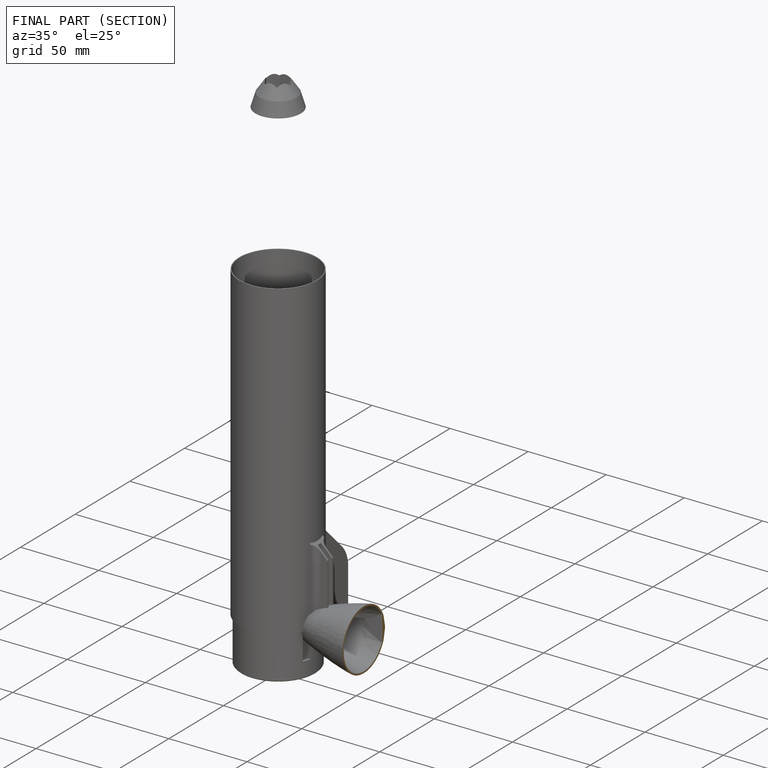
[diagram: finished part — half-section view (interior)]
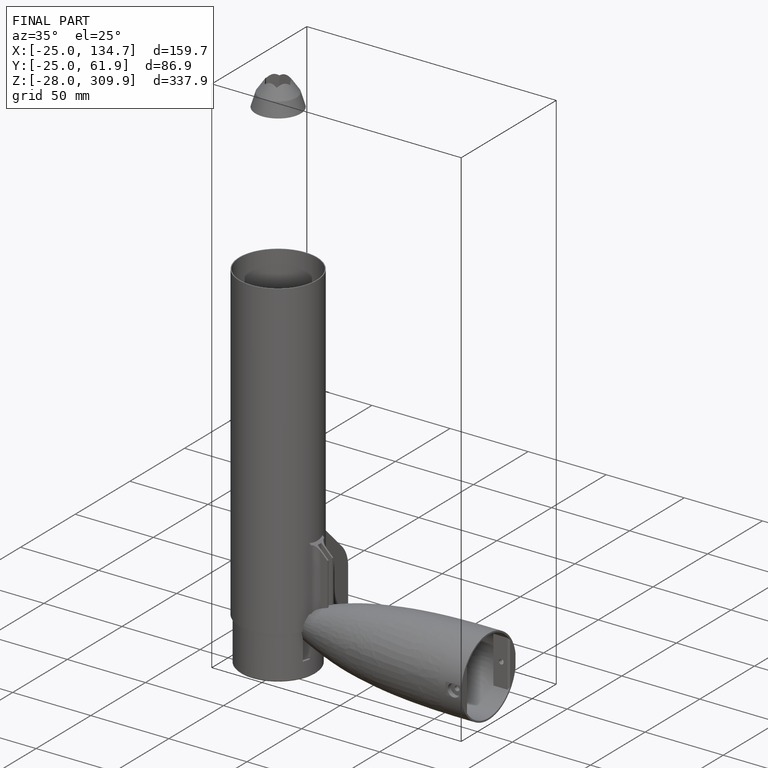
[diagram: finished part — iso view with bounding-box wireframe]
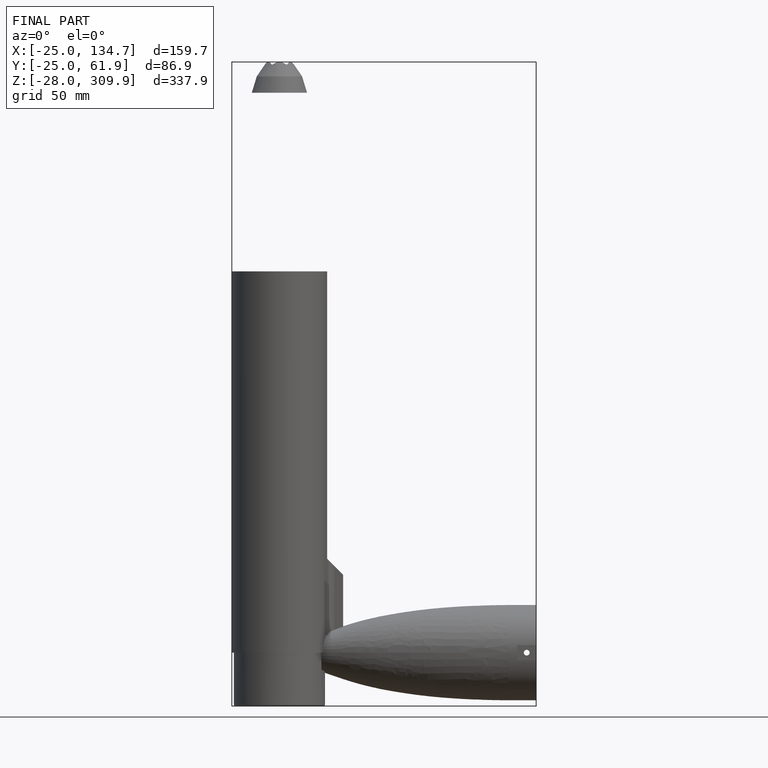
[diagram: finished part — front view with bounding-box wireframe]
